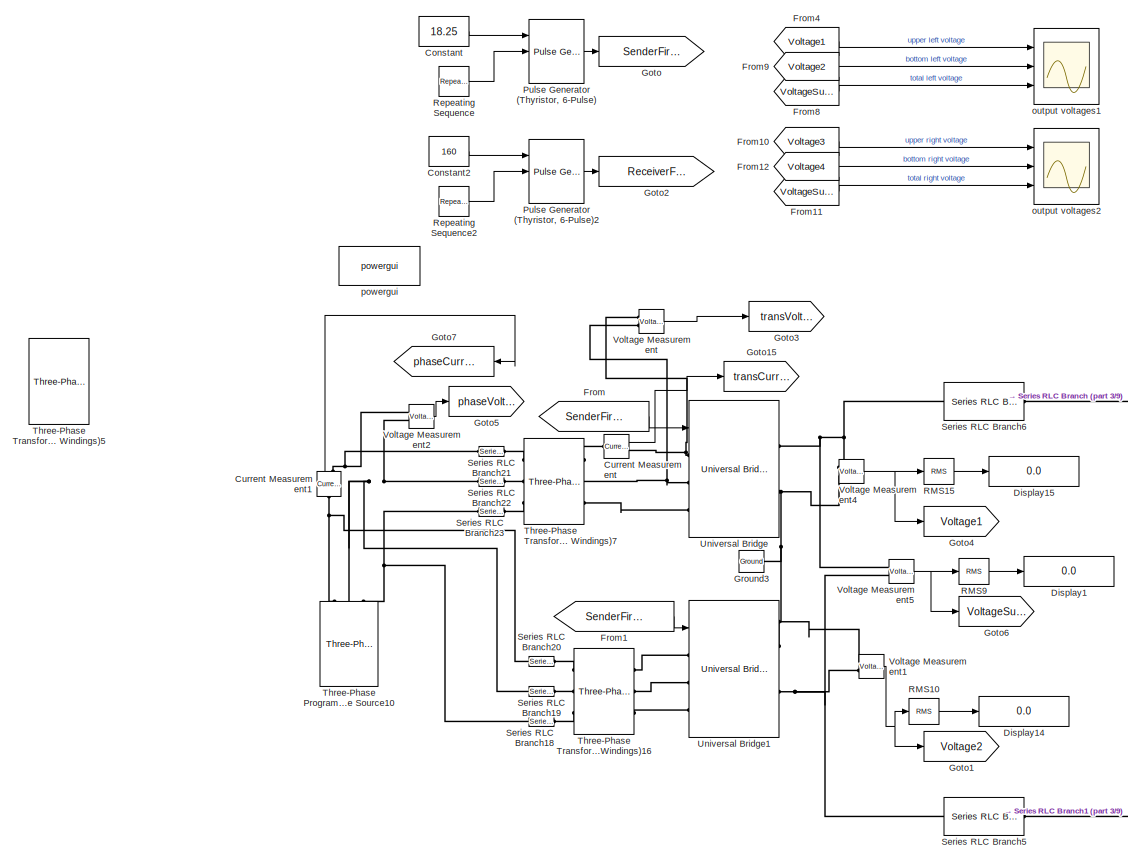
[diagram: root canvas - part 1/9, top left region]
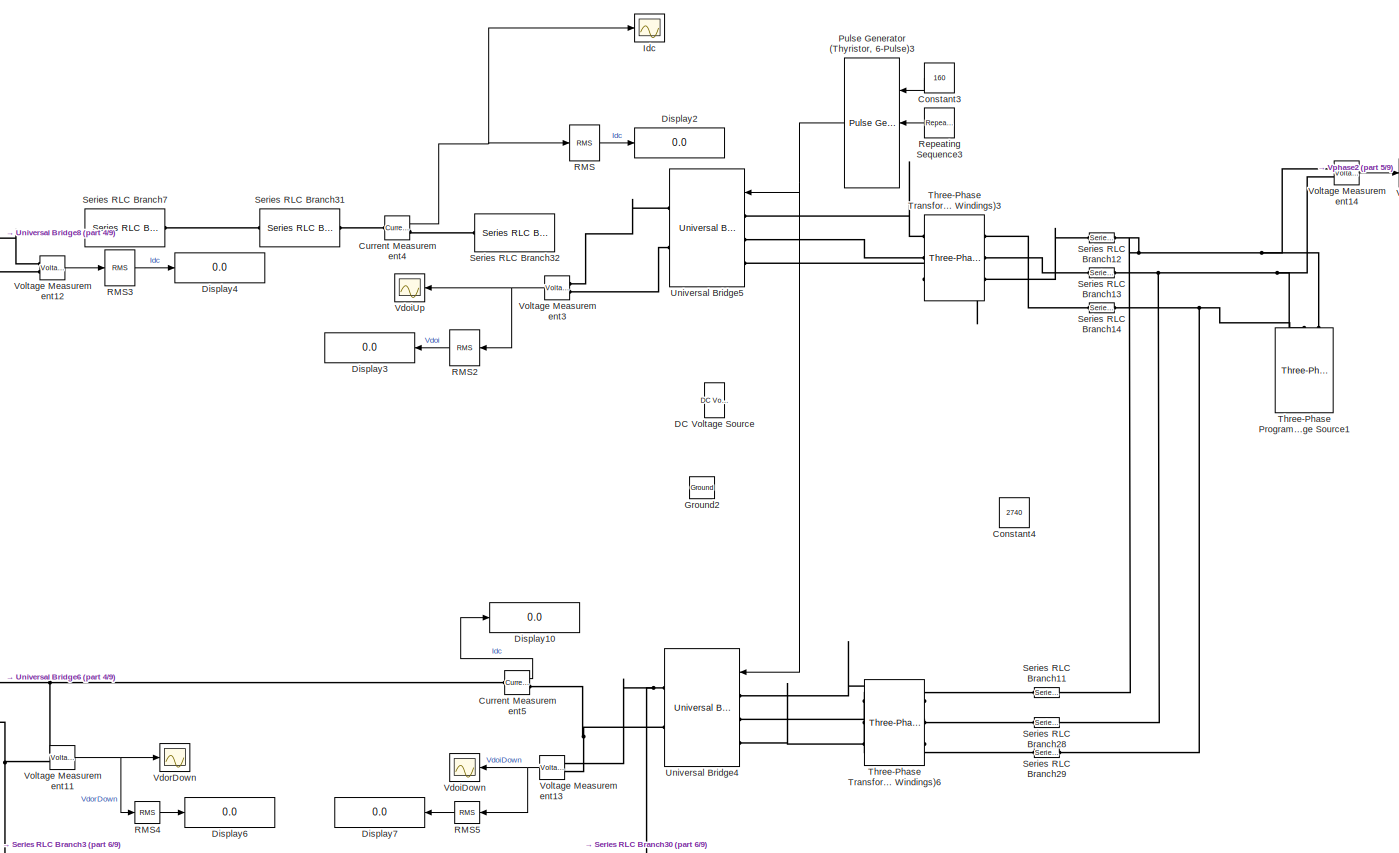
[diagram: root canvas - part 2/9, top right region]
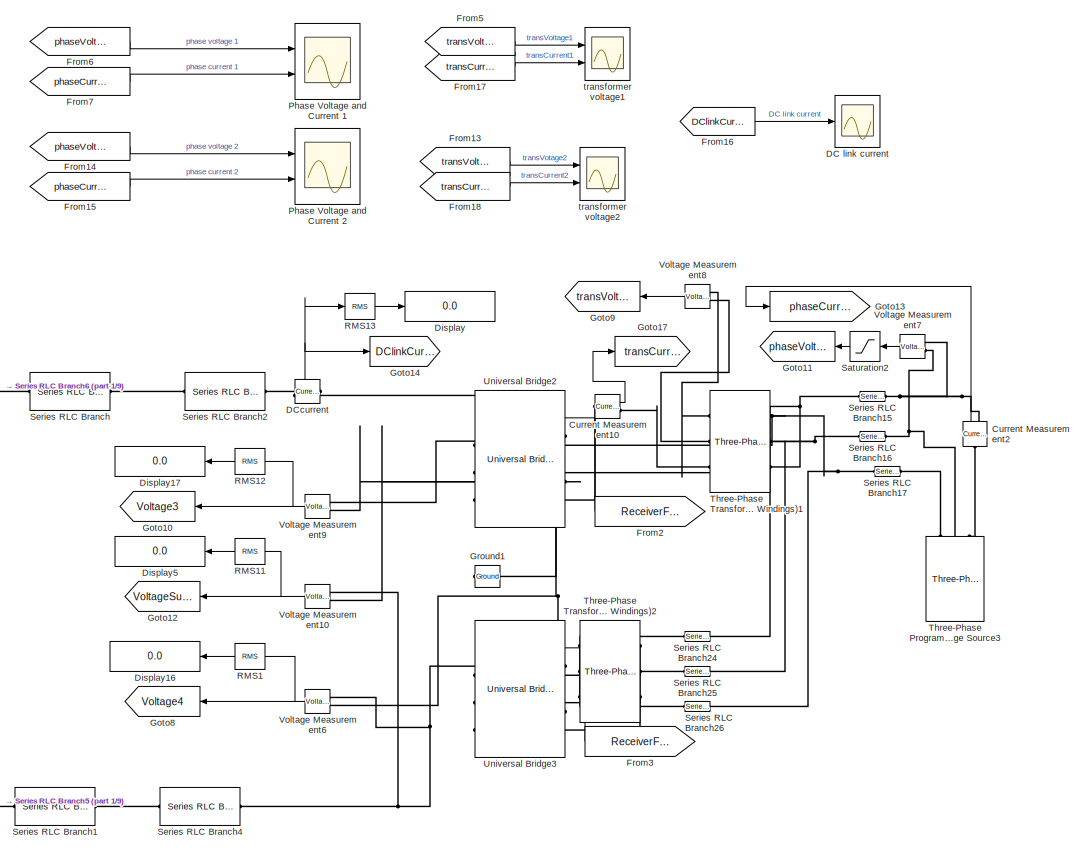
[diagram: root canvas - part 3/9, top left region]
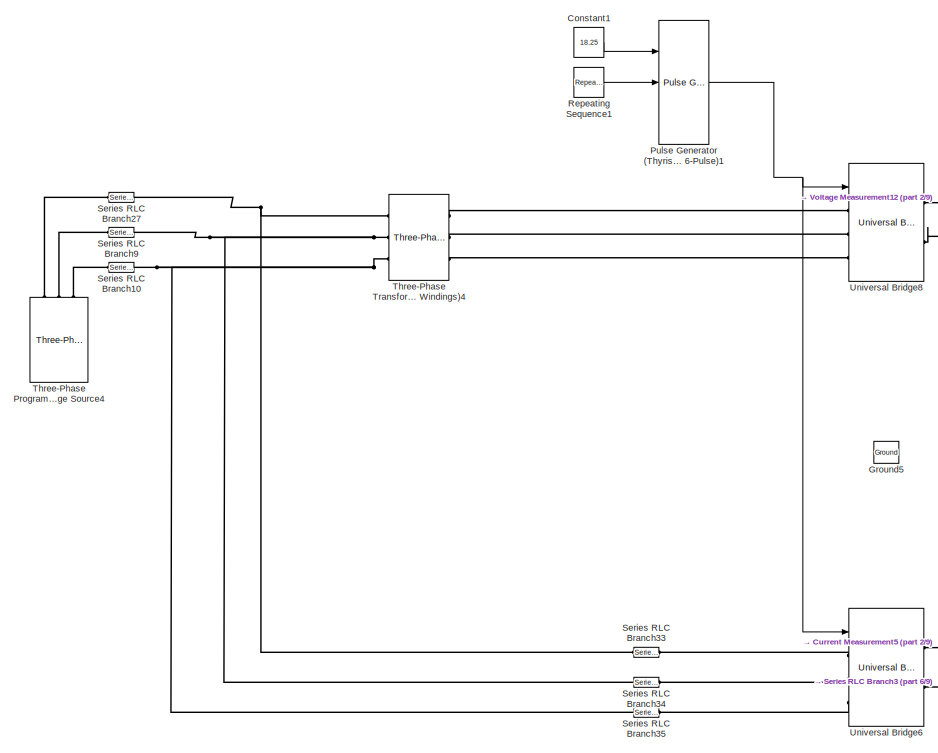
[diagram: root canvas - part 4/9, top center region]
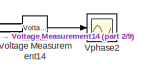
[diagram: root canvas - part 5/9, top right region]
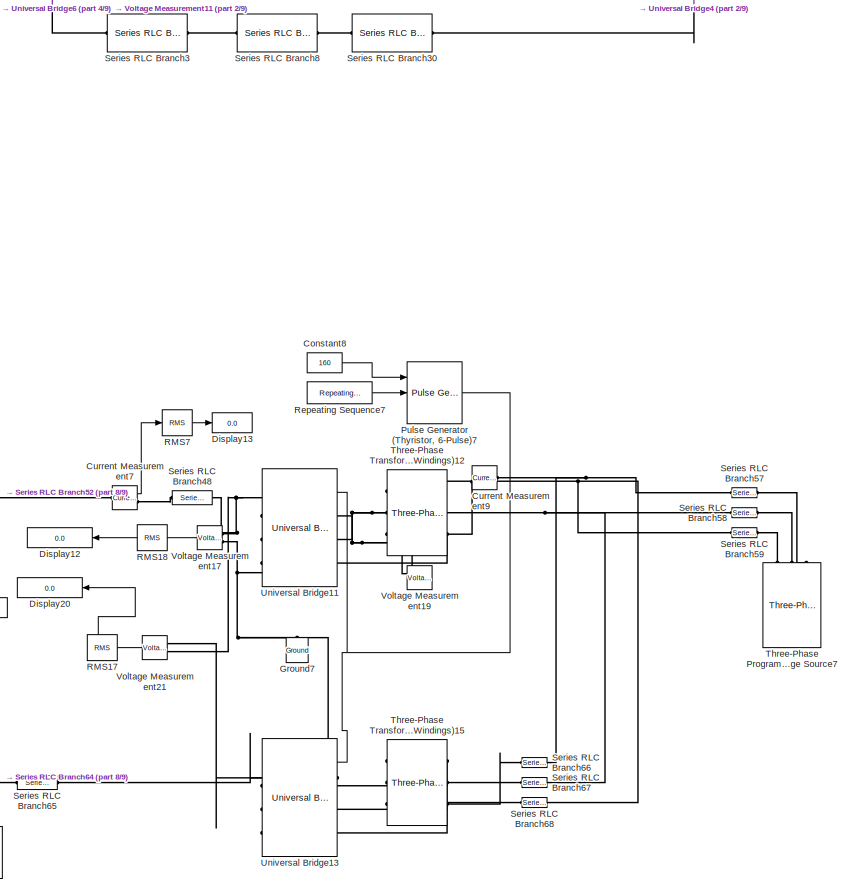
[diagram: root canvas - part 6/9, bottom right region]
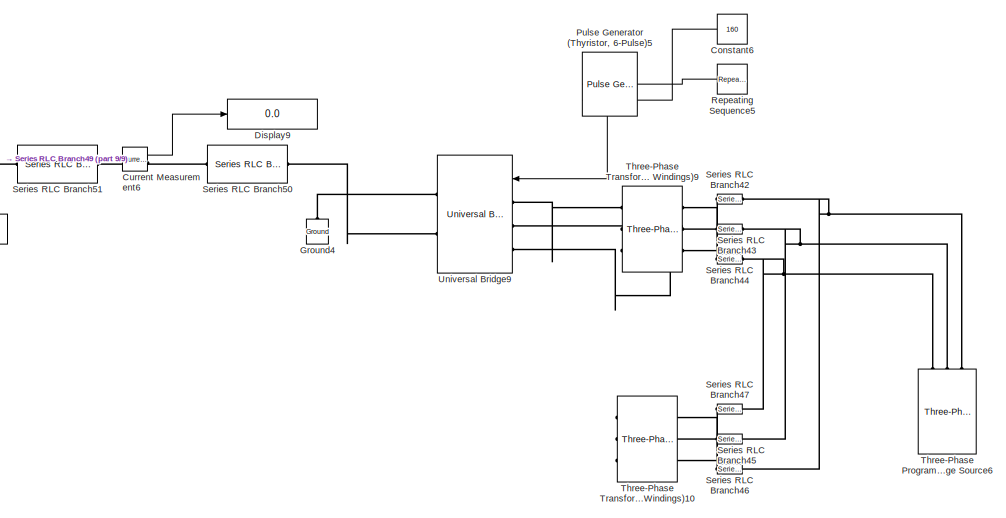
[diagram: root canvas - part 7/9, bottom center region]
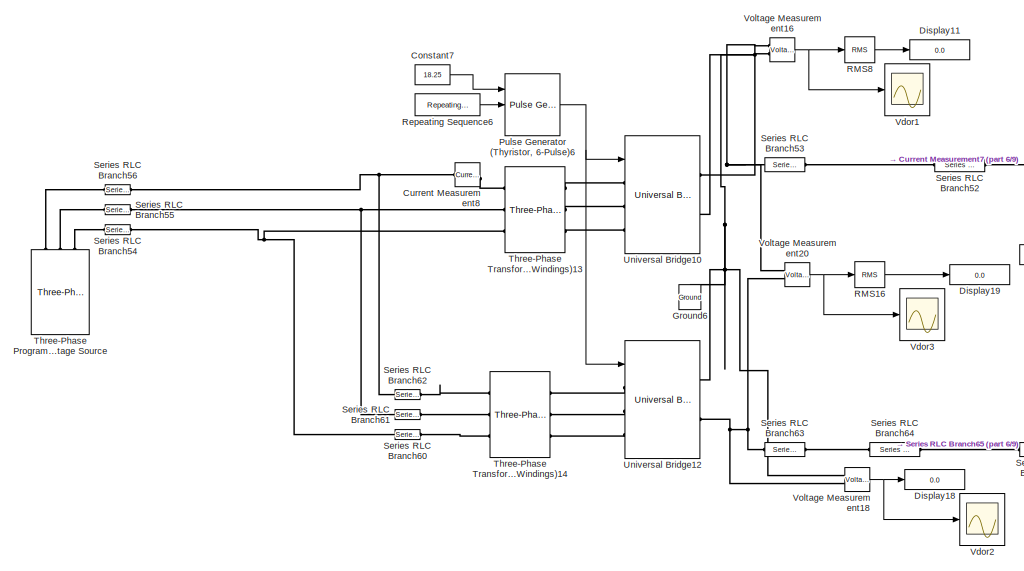
[diagram: root canvas - part 8/9, bottom center region]
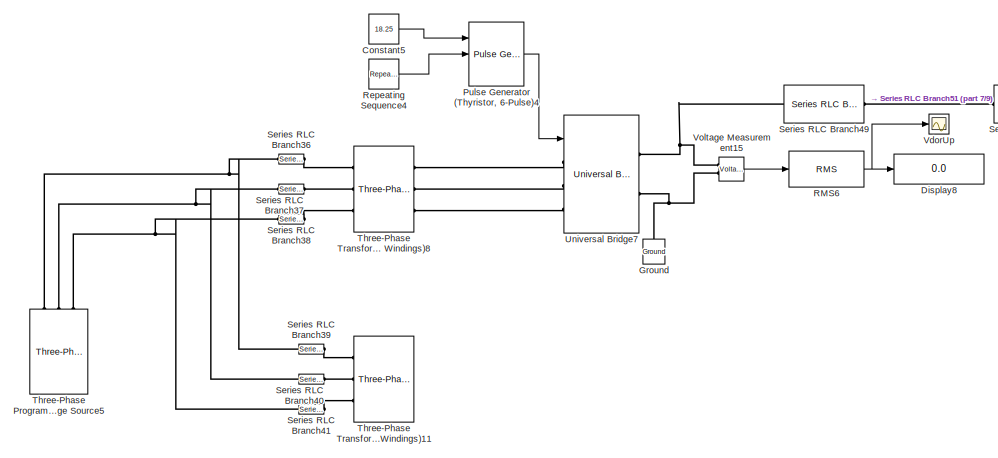
[diagram: root canvas - part 9/9, bottom left region]
MODEL slx_2bbc25c59e41
KIND model
CONFIG AbsTol = auto
CONFIG EnableMultiTasking = off
CONFIG FixedStep = auto
CONFIG MaxStep = 1e-4
CONFIG MinStep = auto
CONFIG RelTol = 1e-3
CONFIG SampleTimeConstraint = Unconstrained
CONFIG SolverName = ode23s
CONFIG StartTime = 0.0
CONFIG StopTime = 0.08
BLOCK [Constant] Constant
  Value = 18.25
BLOCK [Constant] Constant1
  Commented = on
  Value = 18.25
BLOCK [Constant] Constant2
  Value = 160
BLOCK [Constant] Constant3
  Commented = on
  NameLocation = top
  Value = 160
BLOCK [Constant] Constant4
  Commented = on
  Value = 2740
BLOCK [Constant] Constant5
  Commented = on
  Value = 18.25
BLOCK [Constant] Constant6
  Commented = on
  NameLocation = top
  Value = 160
BLOCK [Constant] Constant7
  Value = 18.25
BLOCK [Constant] Constant8
  Value = 160
BLOCK [Reference] Current Measurement  REF=spsCurrentMeasurementLib/Current Measurement
  Ports = [0, 1, 0, 0, 0, 1, 1]
  SourceBlock = spsCurrentMeasurementLib/Current Measurement
  SourceProductBaseCode = PS
  SourceType = Current Measurement
  UserDataPersistent = on
BLOCK [Reference] Current Measurement1  REF=spsCurrentMeasurementLib/Current Measurement
  NameLocation = right
  Ports = [0, 1, 0, 0, 0, 1, 1]
  SourceBlock = spsCurrentMeasurementLib/Current Measurement
  SourceProductBaseCode = PS
  SourceType = Current Measurement
  UserDataPersistent = on
BLOCK [Reference] Current Measurement10  REF=spsCurrentMeasurementLib/Current Measurement
  Ports = [0, 1, 0, 0, 0, 1, 1]
  SourceBlock = spsCurrentMeasurementLib/Current Measurement
  SourceProductBaseCode = PS
  SourceType = Current Measurement
  UserDataPersistent = on
BLOCK [Reference] Current Measurement2  REF=spsCurrentMeasurementLib/Current Measurement
  NameLocation = right
  Ports = [0, 1, 0, 0, 0, 1, 1]
  SourceBlock = spsCurrentMeasurementLib/Current Measurement
  SourceProductBaseCode = PS
  SourceType = Current Measurement
  UserDataPersistent = on
BLOCK [Reference] Current Measurement4  REF=spsCurrentMeasurementLib/Current Measurement
  Commented = on
  Ports = [0, 1, 0, 0, 0, 1, 1]
  SourceBlock = spsCurrentMeasurementLib/Current Measurement
  SourceProductBaseCode = PS
  SourceType = Current Measurement
  UserDataPersistent = on
BLOCK [Reference] Current Measurement5  REF=spsCurrentMeasurementLib/Current Measurement
  Commented = on
  Ports = [0, 1, 0, 0, 0, 1, 1]
  SourceBlock = spsCurrentMeasurementLib/Current Measurement
  SourceProductBaseCode = PS
  SourceType = Current Measurement
  UserDataPersistent = on
BLOCK [Reference] Current Measurement6  REF=spsCurrentMeasurementLib/Current Measurement
  Commented = on
  Ports = [0, 1, 0, 0, 0, 1, 1]
  SourceBlock = spsCurrentMeasurementLib/Current Measurement
  SourceProductBaseCode = PS
  SourceType = Current Measurement
  UserDataPersistent = on
BLOCK [Reference] Current Measurement7  REF=spsCurrentMeasurementLib/Current Measurement
  NameLocation = top
  Ports = [0, 1, 0, 0, 0, 1, 1]
  SourceBlock = spsCurrentMeasurementLib/Current Measurement
  SourceProductBaseCode = PS
  SourceType = Current Measurement
  UserDataPersistent = on
BLOCK [Reference] Current Measurement8  REF=spsCurrentMeasurementLib/Current Measurement
  NameLocation = top
  Ports = [0, 1, 0, 0, 0, 1, 1]
  SourceBlock = spsCurrentMeasurementLib/Current Measurement
  SourceProductBaseCode = PS
  SourceType = Current Measurement
  UserDataPersistent = on
BLOCK [Reference] Current Measurement9  REF=spsCurrentMeasurementLib/Current Measurement
  Ports = [0, 1, 0, 0, 0, 1, 1]
  SourceBlock = spsCurrentMeasurementLib/Current Measurement
  SourceProductBaseCode = PS
  SourceType = Current Measurement
  UserDataPersistent = on
BLOCK [Reference] DC Voltage Source  REF=spsDCVoltageSourceLib/DC Voltage Source
  Commented = on
  Ports = [0, 0, 0, 0, 0, 1, 1]
  SourceBlock = spsDCVoltageSourceLib/DC Voltage Source
  SourceProductBaseCode = PS
  SourceType = DC Voltage Source
BLOCK [Scope] DC link current
  Floating = off
  NumInputPorts = 1
  Ports = [1]
  ScopeSpecificationString = Simulink.scopes.TimeScopeBlockCfg('CurrentConfiguration', extmgr.ConfigurationSet(extmgr.Configuration('Core','General UI',true,'FigureColor',[1 1 1]),extmgr.Configuration('Core','Source UI',true),extmgr.Configuration('Sources','WiredSimulink',true,'DataLoggingVariableName','ScopeData1'),extmgr.Configuration('Visuals','Time Domain',true,'SerializedDisplays',{struct('MinYLimReal','-364.41015','MaxY...<+1870ch>
BLOCK [Reference] DCcurrent  REF=spsCurrentMeasurementLib/Current Measurement
  Ports = [0, 1, 0, 0, 0, 1, 1]
  SourceBlock = spsCurrentMeasurementLib/Current Measurement
  SourceProductBaseCode = PS
  SourceType = Current Measurement
  UserDataPersistent = on
BLOCK [Display] Display
  Decimation = 1
  Ports = [1]
BLOCK [Display] Display1
  Decimation = 1
  Ports = [1]
BLOCK [Display] Display10
  Commented = on
  Decimation = 1
  Ports = [1]
BLOCK [Display] Display11
  Decimation = 1
  Ports = [1]
BLOCK [Display] Display12
  Decimation = 1
  NameLocation = top
  Ports = [1]
BLOCK [Display] Display13
  Decimation = 1
  Ports = [1]
BLOCK [Display] Display14
  Decimation = 1
  Ports = [1]
BLOCK [Display] Display15
  Decimation = 1
  Ports = [1]
BLOCK [Display] Display16
  Decimation = 1
  NameLocation = top
  Ports = [1]
BLOCK [Display] Display17
  Decimation = 1
  NameLocation = top
  Ports = [1]
BLOCK [Display] Display18
  Decimation = 1
  Ports = [1]
BLOCK [Display] Display19
  Decimation = 1
  Ports = [1]
BLOCK [Display] Display2
  Commented = on
  Decimation = 1
  Ports = [1]
BLOCK [Display] Display20
  Decimation = 1
  NameLocation = top
  Ports = [1]
BLOCK [Display] Display3
  Commented = on
  Decimation = 1
  NameLocation = top
  Ports = [1]
BLOCK [Display] Display4
  Commented = on
  Decimation = 1
  Ports = [1]
BLOCK [Display] Display5
  Decimation = 1
  NameLocation = top
  Ports = [1]
BLOCK [Display] Display6
  Commented = on
  Decimation = 1
  Ports = [1]
BLOCK [Display] Display7
  Commented = on
  Decimation = 1
  Ports = [1]
BLOCK [Display] Display8
  Commented = on
  Decimation = 1
  Ports = [1]
BLOCK [Display] Display9
  Commented = on
  Decimation = 1
  Ports = [1]
BLOCK [From] From
  GotoTag = SenderFiringAngles
BLOCK [From] From1
  GotoTag = SenderFiringAngles
BLOCK [From] From10
  GotoTag = Voltage3
BLOCK [From] From11
  GotoTag = VoltageSum2
BLOCK [From] From12
  GotoTag = Voltage4
BLOCK [From] From13
  GotoTag = transVoltage2
BLOCK [From] From14
  GotoTag = phaseVoltage2
BLOCK [From] From15
  GotoTag = phaseCurrent2
BLOCK [From] From16
  GotoTag = DClinkCurrent
BLOCK [From] From17
  GotoTag = transCurrent1
BLOCK [From] From18
  GotoTag = transCurrent2
BLOCK [From] From2
  GotoTag = ReceiverFiringAngles
BLOCK [From] From3
  GotoTag = ReceiverFiringAngles
BLOCK [From] From4
  GotoTag = Voltage1
BLOCK [From] From5
  GotoTag = transVoltage1
BLOCK [From] From6
  GotoTag = phaseVoltage
BLOCK [From] From7
  GotoTag = phaseCurrent
BLOCK [From] From8
  GotoTag = VoltageSum1
BLOCK [From] From9
  GotoTag = Voltage2
BLOCK [Goto] Goto
  GotoTag = SenderFiringAngles
BLOCK [Goto] Goto1
  GotoTag = Voltage2
BLOCK [Goto] Goto10
  GotoTag = Voltage3
BLOCK [Goto] Goto11
  GotoTag = phaseVoltage2
BLOCK [Goto] Goto12
  GotoTag = VoltageSum2
BLOCK [Goto] Goto13
  GotoTag = phaseCurrent2
  NameLocation = top
BLOCK [Goto] Goto14
  GotoTag = DClinkCurrent
BLOCK [Goto] Goto15
  GotoTag = transCurrent1
BLOCK [Goto] Goto17
  GotoTag = transCurrent2
BLOCK [Goto] Goto2
  GotoTag = ReceiverFiringAngles
BLOCK [Goto] Goto3
  GotoTag = transVoltage1
BLOCK [Goto] Goto4
  GotoTag = Voltage1
BLOCK [Goto] Goto5
  GotoTag = phaseVoltage
BLOCK [Goto] Goto6
  GotoTag = VoltageSum1
BLOCK [Goto] Goto7
  GotoTag = phaseCurrent
  NameLocation = top
BLOCK [Goto] Goto8
  GotoTag = Voltage4
BLOCK [Goto] Goto9
  GotoTag = transVoltage2
BLOCK [Reference] Ground  REF=spsGroundLib/Ground
  Commented = on
  NameLocation = right
  Ports = [0, 0, 0, 0, 0, 1]
  SourceBlock = spsGroundLib/Ground
  SourceProductBaseCode = PS
  SourceType = Ground
BLOCK [Reference] Ground1  REF=spsGroundLib/Ground
  NameLocation = top
  Ports = [0, 0, 0, 0, 0, 1]
  SourceBlock = spsGroundLib/Ground
  SourceProductBaseCode = PS
  SourceType = Ground
BLOCK [Reference] Ground2  REF=spsGroundLib/Ground
  Commented = on
  NameLocation = top
  Ports = [0, 0, 0, 0, 0, 1]
  SourceBlock = spsGroundLib/Ground
  SourceProductBaseCode = PS
  SourceType = Ground
BLOCK [Reference] Ground3  REF=spsGroundLib/Ground
  Ports = [0, 0, 0, 0, 0, 1]
  SourceBlock = spsGroundLib/Ground
  SourceProductBaseCode = PS
  SourceType = Ground
BLOCK [Reference] Ground4  REF=spsGroundLib/Ground
  Commented = on
  NameLocation = right
  Ports = [0, 0, 0, 0, 0, 1]
  SourceBlock = spsGroundLib/Ground
  SourceProductBaseCode = PS
  SourceType = Ground
BLOCK [Reference] Ground5  REF=spsGroundLib/Ground
  Commented = on
  Ports = [0, 0, 0, 0, 0, 1]
  SourceBlock = spsGroundLib/Ground
  SourceProductBaseCode = PS
  SourceType = Ground
BLOCK [Reference] Ground6  REF=spsGroundLib/Ground
  NameLocation = right
  Ports = [0, 0, 0, 0, 0, 1]
  SourceBlock = spsGroundLib/Ground
  SourceProductBaseCode = PS
  SourceType = Ground
BLOCK [Reference] Ground7  REF=spsGroundLib/Ground
  NameLocation = right
  Ports = [0, 0, 0, 0, 0, 1]
  SourceBlock = spsGroundLib/Ground
  SourceProductBaseCode = PS
  SourceType = Ground
BLOCK [Scope] Idc
  Commented = on
  Floating = off
  NumInputPorts = 1
  Ports = [1]
  ScopeSpecificationString = Simulink.scopes.TimeScopeBlockCfg('CurrentConfiguration', extmgr.ConfigurationSet(extmgr.Configuration('Core','General UI',true,'FigureColor',[1 1 1]),extmgr.Configuration('Core','Source UI',true),extmgr.Configuration('Sources','WiredSimulink',true,'DataLoggingVariableName','ScopeData3'),extmgr.Configuration('Visuals','Time Domain',true,'SerializedDisplays',{struct('MinYLimReal','-0.58351','MaxYLi...<+1857ch>
BLOCK [Scope] Phase Voltage and Current 1
  Floating = off
  NumInputPorts = 2
  Ports = [2]
  ScopeSpecificationString = Simulink.scopes.TimeScopeBlockCfg('CurrentConfiguration', extmgr.ConfigurationSet(extmgr.Configuration('Core','General UI',true,'FigureColor',[1 1 1]),extmgr.Configuration('Core','Source UI',true),extmgr.Configuration('Sources','WiredSimulink',true,'DataLoggingVariableName','ScopeData1'),extmgr.Configuration('Visuals','Time Domain',true,'SerializedDisplays',{struct('MinYLimReal','-27300.24313','Ma...<+2384ch>
BLOCK [Scope] Phase Voltage and Current 2
  Floating = off
  NumInputPorts = 2
  Ports = [2]
  ScopeSpecificationString = Simulink.scopes.TimeScopeBlockCfg('CurrentConfiguration', extmgr.ConfigurationSet(extmgr.Configuration('Core','General UI',true,'FigureColor',[1 1 1]),extmgr.Configuration('Core','Source UI',true),extmgr.Configuration('Sources','WiredSimulink',true,'DataLoggingVariableName','ScopeData2'),extmgr.Configuration('Visuals','Time Domain',true,'SerializedDisplays',{struct('MinYLimReal','-38890.87297','Ma...<+2384ch>
BLOCK [Reference] Pulse Generator (Thyristor, 6-Pulse)  REF=spsPulseGeneratorThyristor6PulseLib/Pulse Generator
(Thyristor, 6-Pulse)
  Ports = [3, 1]
  SourceBlock = spsPulseGeneratorThyristor6PulseLib/Pulse Generator\n(Thyristor, 6-Pulse)
  SourceProductBaseCode = PS
  SourceType = Pulse Generator (Thyristor)
BLOCK [Reference] Pulse Generator (Thyristor, 6-Pulse)1  REF=spsPulseGeneratorThyristor6PulseLib/Pulse Generator
(Thyristor, 6-Pulse)
  Commented = on
  Ports = [3, 1]
  SourceBlock = spsPulseGeneratorThyristor6PulseLib/Pulse Generator\n(Thyristor, 6-Pulse)
  SourceProductBaseCode = PS
  SourceType = Pulse Generator (Thyristor)
BLOCK [Reference] Pulse Generator (Thyristor, 6-Pulse)2  REF=spsPulseGeneratorThyristor6PulseLib/Pulse Generator
(Thyristor, 6-Pulse)
  Ports = [3, 1]
  SourceBlock = spsPulseGeneratorThyristor6PulseLib/Pulse Generator\n(Thyristor, 6-Pulse)
  SourceProductBaseCode = PS
  SourceType = Pulse Generator (Thyristor)
BLOCK [Reference] Pulse Generator (Thyristor, 6-Pulse)3  REF=spsPulseGeneratorThyristor6PulseLib/Pulse Generator
(Thyristor, 6-Pulse)
  Commented = on
  Ports = [3, 1]
  SourceBlock = spsPulseGeneratorThyristor6PulseLib/Pulse Generator\n(Thyristor, 6-Pulse)
  SourceProductBaseCode = PS
  SourceType = Pulse Generator (Thyristor)
BLOCK [Reference] Pulse Generator (Thyristor, 6-Pulse)4  REF=spsPulseGeneratorThyristor6PulseLib/Pulse Generator
(Thyristor, 6-Pulse)
  Commented = on
  Ports = [3, 1]
  SourceBlock = spsPulseGeneratorThyristor6PulseLib/Pulse Generator\n(Thyristor, 6-Pulse)
  SourceProductBaseCode = PS
  SourceType = Pulse Generator (Thyristor)
BLOCK [Reference] Pulse Generator (Thyristor, 6-Pulse)5  REF=spsPulseGeneratorThyristor6PulseLib/Pulse Generator
(Thyristor, 6-Pulse)
  Commented = on
  NameLocation = top
  Ports = [3, 1]
  SourceBlock = spsPulseGeneratorThyristor6PulseLib/Pulse Generator\n(Thyristor, 6-Pulse)
  SourceProductBaseCode = PS
  SourceType = Pulse Generator (Thyristor)
BLOCK [Reference] Pulse Generator (Thyristor, 6-Pulse)6  REF=spsPulseGeneratorThyristor12PulseLib/Pulse Generator
(Thyristor, 12-Pulse)
  Ports = [3, 1]
  SourceBlock = spsPulseGeneratorThyristor12PulseLib/Pulse Generator\n(Thyristor, 12-Pulse)
  SourceProductBaseCode = PS
  SourceType = Pulse Generator (Thyristor)
BLOCK [Reference] Pulse Generator (Thyristor, 6-Pulse)7  REF=spsPulseGeneratorThyristor12PulseLib/Pulse Generator
(Thyristor, 12-Pulse)
  Ports = [3, 1]
  SourceBlock = spsPulseGeneratorThyristor12PulseLib/Pulse Generator\n(Thyristor, 12-Pulse)
  SourceProductBaseCode = PS
  SourceType = Pulse Generator (Thyristor)
BLOCK [Reference] RMS  REF=dspstat3/RMS
  Commented = on
  Ports = [1, 1]
  SourceBlock = dspstat3/RMS
  SourceProductBaseCode = DS
  SourceType = RMS
  UserDataPersistent = on
BLOCK [Reference] RMS1  REF=spsRMSLib/RMS
  NameLocation = top
  Ports = [1, 1]
  SourceBlock = spsRMSLib/RMS
  SourceProductBaseCode = PS
  SourceType = RMS
BLOCK [Reference] RMS10  REF=spsRMSLib/RMS
  Ports = [1, 1]
  SourceBlock = spsRMSLib/RMS
  SourceProductBaseCode = PS
  SourceType = RMS
BLOCK [Reference] RMS11  REF=spsRMSLib/RMS
  NameLocation = top
  Ports = [1, 1]
  SourceBlock = spsRMSLib/RMS
  SourceProductBaseCode = PS
  SourceType = RMS
BLOCK [Reference] RMS12  REF=spsRMSLib/RMS
  NameLocation = top
  Ports = [1, 1]
  SourceBlock = spsRMSLib/RMS
  SourceProductBaseCode = PS
  SourceType = RMS
BLOCK [Reference] RMS13  REF=spsRMSLib/RMS
  Ports = [1, 1]
  SourceBlock = spsRMSLib/RMS
  SourceProductBaseCode = PS
  SourceType = RMS
BLOCK [Reference] RMS15  REF=spsRMSLib/RMS
  Ports = [1, 1]
  SourceBlock = spsRMSLib/RMS
  SourceProductBaseCode = PS
  SourceType = RMS
BLOCK [Reference] RMS16  REF=spsRMSLib/RMS
  Ports = [1, 1]
  SourceBlock = spsRMSLib/RMS
  SourceProductBaseCode = PS
  SourceType = RMS
BLOCK [Reference] RMS17  REF=spsRMSLib/RMS
  NameLocation = top
  Ports = [1, 1]
  SourceBlock = spsRMSLib/RMS
  SourceProductBaseCode = PS
  SourceType = RMS
BLOCK [Reference] RMS18  REF=spsRMSLib/RMS
  NameLocation = top
  Ports = [1, 1]
  SourceBlock = spsRMSLib/RMS
  SourceProductBaseCode = PS
  SourceType = RMS
BLOCK [Reference] RMS2  REF=dspstat3/RMS
  Commented = on
  NameLocation = top
  Ports = [1, 1]
  SourceBlock = dspstat3/RMS
  SourceProductBaseCode = DS
  SourceType = RMS
  UserDataPersistent = on
BLOCK [Reference] RMS3  REF=dspstat3/RMS
  Commented = on
  Ports = [1, 1]
  SourceBlock = dspstat3/RMS
  SourceProductBaseCode = DS
  SourceType = RMS
  UserDataPersistent = on
BLOCK [Reference] RMS4  REF=dspstat3/RMS
  Commented = on
  Ports = [1, 1]
  SourceBlock = dspstat3/RMS
  SourceProductBaseCode = DS
  SourceType = RMS
  UserDataPersistent = on
BLOCK [Reference] RMS5  REF=dspstat3/RMS
  Commented = on
  Ports = [1, 1]
  SourceBlock = dspstat3/RMS
  SourceProductBaseCode = DS
  SourceType = RMS
  UserDataPersistent = on
BLOCK [Reference] RMS6  REF=dspstat3/RMS
  Commented = on
  Ports = [1, 1]
  SourceBlock = dspstat3/RMS
  SourceProductBaseCode = DS
  SourceType = RMS
  UserDataPersistent = on
BLOCK [Reference] RMS7  REF=spsRMSLib/RMS
  Ports = [1, 1]
  SourceBlock = spsRMSLib/RMS
  SourceProductBaseCode = PS
  SourceType = RMS
BLOCK [Reference] RMS8  REF=spsRMSLib/RMS
  Ports = [1, 1]
  SourceBlock = spsRMSLib/RMS
  SourceProductBaseCode = PS
  SourceType = RMS
BLOCK [Reference] RMS9  REF=spsRMSLib/RMS
  Ports = [1, 1]
  SourceBlock = spsRMSLib/RMS
  SourceProductBaseCode = PS
  SourceType = RMS
BLOCK [Reference] Repeating Sequence  REF=simulink/Sources/Repeating
Sequence
  Ports = [0, 1]
  SourceBlock = simulink/Sources/Repeating\nSequence
  SourceProductBaseCode = SL
  SourceType = Repeating table
BLOCK [Reference] Repeating Sequence1  REF=simulink/Sources/Repeating
Sequence
  Commented = on
  Ports = [0, 1]
  SourceBlock = simulink/Sources/Repeating\nSequence
  SourceProductBaseCode = SL
  SourceType = Repeating table
BLOCK [Reference] Repeating Sequence2  REF=simulink/Sources/Repeating
Sequence
  Ports = [0, 1]
  SourceBlock = simulink/Sources/Repeating\nSequence
  SourceProductBaseCode = SL
  SourceType = Repeating table
BLOCK [Reference] Repeating Sequence3  REF=simulink/Sources/Repeating
Sequence
  Commented = on
  NameLocation = top
  Ports = [0, 1]
  SourceBlock = simulink/Sources/Repeating\nSequence
  SourceProductBaseCode = SL
  SourceType = Repeating table
BLOCK [Reference] Repeating Sequence4  REF=simulink/Sources/Repeating
Sequence
  Commented = on
  Ports = [0, 1]
  SourceBlock = simulink/Sources/Repeating\nSequence
  SourceProductBaseCode = SL
  SourceType = Repeating table
BLOCK [Reference] Repeating Sequence5  REF=simulink/Sources/Repeating
Sequence
  Commented = on
  NameLocation = top
  Ports = [0, 1]
  SourceBlock = simulink/Sources/Repeating\nSequence
  SourceProductBaseCode = SL
  SourceType = Repeating table
BLOCK [Reference] Repeating Sequence6  REF=simulink/Sources/Repeating
Sequence
  Ports = [0, 1]
  SourceBlock = simulink/Sources/Repeating\nSequence
  SourceProductBaseCode = SL
  SourceType = Repeating table
BLOCK [Reference] Repeating Sequence7  REF=simulink/Sources/Repeating
Sequence
  Ports = [0, 1]
  SourceBlock = simulink/Sources/Repeating\nSequence
  SourceProductBaseCode = SL
  SourceType = Repeating table
BLOCK [Saturate] Saturation2
  LowerLimit = -200e3
  UpperLimit = 200e3
BLOCK [Reference] Series RLC Branch  REF=spsSeriesRLCBranchLib/Series RLC Branch
  Ports = [0, 0, 0, 0, 0, 1, 1]
  SourceBlock = spsSeriesRLCBranchLib/Series RLC Branch
  SourceProductBaseCode = PS
  SourceType = Series RLC Branch
BLOCK [Reference] Series RLC Branch1  REF=spsSeriesRLCBranchLib/Series RLC Branch
  Ports = [0, 0, 0, 0, 0, 1, 1]
  SourceBlock = spsSeriesRLCBranchLib/Series RLC Branch
  SourceProductBaseCode = PS
  SourceType = Series RLC Branch
BLOCK [Reference] Series RLC Branch10  REF=spsSeriesRLCBranchLib/Series RLC Branch
  Commented = on
  Ports = [0, 0, 0, 0, 0, 1, 1]
  SourceBlock = spsSeriesRLCBranchLib/Series RLC Branch
  SourceProductBaseCode = PS
  SourceType = Series RLC Branch
BLOCK [Reference] Series RLC Branch11  REF=spsSeriesRLCBranchLib/Series RLC Branch
  Commented = on
  Ports = [0, 0, 0, 0, 0, 1, 1]
  SourceBlock = spsSeriesRLCBranchLib/Series RLC Branch
  SourceProductBaseCode = PS
  SourceType = Series RLC Branch
BLOCK [Reference] Series RLC Branch12  REF=spsSeriesRLCBranchLib/Series RLC Branch
  Commented = on
  Ports = [0, 0, 0, 0, 0, 1, 1]
  SourceBlock = spsSeriesRLCBranchLib/Series RLC Branch
  SourceProductBaseCode = PS
  SourceType = Series RLC Branch
BLOCK [Reference] Series RLC Branch13  REF=spsSeriesRLCBranchLib/Series RLC Branch
  Commented = on
  Ports = [0, 0, 0, 0, 0, 1, 1]
  SourceBlock = spsSeriesRLCBranchLib/Series RLC Branch
  SourceProductBaseCode = PS
  SourceType = Series RLC Branch
BLOCK [Reference] Series RLC Branch14  REF=spsSeriesRLCBranchLib/Series RLC Branch
  Commented = on
  Ports = [0, 0, 0, 0, 0, 1, 1]
  SourceBlock = spsSeriesRLCBranchLib/Series RLC Branch
  SourceProductBaseCode = PS
  SourceType = Series RLC Branch
BLOCK [Reference] Series RLC Branch15  REF=spsSeriesRLCBranchLib/Series RLC Branch
  Ports = [0, 0, 0, 0, 0, 1, 1]
  SourceBlock = spsSeriesRLCBranchLib/Series RLC Branch
  SourceProductBaseCode = PS
  SourceType = Series RLC Branch
BLOCK [Reference] Series RLC Branch16  REF=spsSeriesRLCBranchLib/Series RLC Branch
  Ports = [0, 0, 0, 0, 0, 1, 1]
  SourceBlock = spsSeriesRLCBranchLib/Series RLC Branch
  SourceProductBaseCode = PS
  SourceType = Series RLC Branch
BLOCK [Reference] Series RLC Branch17  REF=spsSeriesRLCBranchLib/Series RLC Branch
  Ports = [0, 0, 0, 0, 0, 1, 1]
  SourceBlock = spsSeriesRLCBranchLib/Series RLC Branch
  SourceProductBaseCode = PS
  SourceType = Series RLC Branch
BLOCK [Reference] Series RLC Branch18  REF=spsSeriesRLCBranchLib/Series RLC Branch
  Ports = [0, 0, 0, 0, 0, 1, 1]
  SourceBlock = spsSeriesRLCBranchLib/Series RLC Branch
  SourceProductBaseCode = PS
  SourceType = Series RLC Branch
BLOCK [Reference] Series RLC Branch19  REF=spsSeriesRLCBranchLib/Series RLC Branch
  Ports = [0, 0, 0, 0, 0, 1, 1]
  SourceBlock = spsSeriesRLCBranchLib/Series RLC Branch
  SourceProductBaseCode = PS
  SourceType = Series RLC Branch
BLOCK [Reference] Series RLC Branch2  REF=spsSeriesRLCBranchLib/Series RLC Branch
  Ports = [0, 0, 0, 0, 0, 1, 1]
  SourceBlock = spsSeriesRLCBranchLib/Series RLC Branch
  SourceProductBaseCode = PS
  SourceType = Series RLC Branch
BLOCK [Reference] Series RLC Branch20  REF=spsSeriesRLCBranchLib/Series RLC Branch
  Ports = [0, 0, 0, 0, 0, 1, 1]
  SourceBlock = spsSeriesRLCBranchLib/Series RLC Branch
  SourceProductBaseCode = PS
  SourceType = Series RLC Branch
BLOCK [Reference] Series RLC Branch21  REF=spsSeriesRLCBranchLib/Series RLC Branch
  Ports = [0, 0, 0, 0, 0, 1, 1]
  SourceBlock = spsSeriesRLCBranchLib/Series RLC Branch
  SourceProductBaseCode = PS
  SourceType = Series RLC Branch
BLOCK [Reference] Series RLC Branch22  REF=spsSeriesRLCBranchLib/Series RLC Branch
  Ports = [0, 0, 0, 0, 0, 1, 1]
  SourceBlock = spsSeriesRLCBranchLib/Series RLC Branch
  SourceProductBaseCode = PS
  SourceType = Series RLC Branch
BLOCK [Reference] Series RLC Branch23  REF=spsSeriesRLCBranchLib/Series RLC Branch
  Ports = [0, 0, 0, 0, 0, 1, 1]
  SourceBlock = spsSeriesRLCBranchLib/Series RLC Branch
  SourceProductBaseCode = PS
  SourceType = Series RLC Branch
BLOCK [Reference] Series RLC Branch24  REF=spsSeriesRLCBranchLib/Series RLC Branch
  Ports = [0, 0, 0, 0, 0, 1, 1]
  SourceBlock = spsSeriesRLCBranchLib/Series RLC Branch
  SourceProductBaseCode = PS
  SourceType = Series RLC Branch
BLOCK [Reference] Series RLC Branch25  REF=spsSeriesRLCBranchLib/Series RLC Branch
  Ports = [0, 0, 0, 0, 0, 1, 1]
  SourceBlock = spsSeriesRLCBranchLib/Series RLC Branch
  SourceProductBaseCode = PS
  SourceType = Series RLC Branch
BLOCK [Reference] Series RLC Branch26  REF=spsSeriesRLCBranchLib/Series RLC Branch
  Ports = [0, 0, 0, 0, 0, 1, 1]
  SourceBlock = spsSeriesRLCBranchLib/Series RLC Branch
  SourceProductBaseCode = PS
  SourceType = Series RLC Branch
BLOCK [Reference] Series RLC Branch27  REF=spsSeriesRLCBranchLib/Series RLC Branch
  Commented = on
  Ports = [0, 0, 0, 0, 0, 1, 1]
  SourceBlock = spsSeriesRLCBranchLib/Series RLC Branch
  SourceProductBaseCode = PS
  SourceType = Series RLC Branch
BLOCK [Reference] Series RLC Branch28  REF=spsSeriesRLCBranchLib/Series RLC Branch
  Commented = on
  Ports = [0, 0, 0, 0, 0, 1, 1]
  SourceBlock = spsSeriesRLCBranchLib/Series RLC Branch
  SourceProductBaseCode = PS
  SourceType = Series RLC Branch
BLOCK [Reference] Series RLC Branch29  REF=spsSeriesRLCBranchLib/Series RLC Branch
  Commented = on
  Ports = [0, 0, 0, 0, 0, 1, 1]
  SourceBlock = spsSeriesRLCBranchLib/Series RLC Branch
  SourceProductBaseCode = PS
  SourceType = Series RLC Branch
BLOCK [Reference] Series RLC Branch3  REF=spsSeriesRLCBranchLib/Series RLC Branch
  Commented = on
  Ports = [0, 0, 0, 0, 0, 1, 1]
  SourceBlock = spsSeriesRLCBranchLib/Series RLC Branch
  SourceProductBaseCode = PS
  SourceType = Series RLC Branch
BLOCK [Reference] Series RLC Branch30  REF=spsSeriesRLCBranchLib/Series RLC Branch
  Commented = on
  Ports = [0, 0, 0, 0, 0, 1, 1]
  SourceBlock = spsSeriesRLCBranchLib/Series RLC Branch
  SourceProductBaseCode = PS
  SourceType = Series RLC Branch
BLOCK [Reference] Series RLC Branch31  REF=spsSeriesRLCBranchLib/Series RLC Branch
  Commented = on
  Ports = [0, 0, 0, 0, 0, 1, 1]
  SourceBlock = spsSeriesRLCBranchLib/Series RLC Branch
  SourceProductBaseCode = PS
  SourceType = Series RLC Branch
BLOCK [Reference] Series RLC Branch32  REF=spsSeriesRLCBranchLib/Series RLC Branch
  Commented = on
  Ports = [0, 0, 0, 0, 0, 1, 1]
  SourceBlock = spsSeriesRLCBranchLib/Series RLC Branch
  SourceProductBaseCode = PS
  SourceType = Series RLC Branch
BLOCK [Reference] Series RLC Branch33  REF=spsSeriesRLCBranchLib/Series RLC Branch
  Commented = on
  Ports = [0, 0, 0, 0, 0, 1, 1]
  SourceBlock = spsSeriesRLCBranchLib/Series RLC Branch
  SourceProductBaseCode = PS
  SourceType = Series RLC Branch
BLOCK [Reference] Series RLC Branch34  REF=spsSeriesRLCBranchLib/Series RLC Branch
  Commented = on
  Ports = [0, 0, 0, 0, 0, 1, 1]
  SourceBlock = spsSeriesRLCBranchLib/Series RLC Branch
  SourceProductBaseCode = PS
  SourceType = Series RLC Branch
BLOCK [Reference] Series RLC Branch35  REF=spsSeriesRLCBranchLib/Series RLC Branch
  Commented = on
  Ports = [0, 0, 0, 0, 0, 1, 1]
  SourceBlock = spsSeriesRLCBranchLib/Series RLC Branch
  SourceProductBaseCode = PS
  SourceType = Series RLC Branch
BLOCK [Reference] Series RLC Branch36  REF=spsSeriesRLCBranchLib/Series RLC Branch
  Commented = on
  Ports = [0, 0, 0, 0, 0, 1, 1]
  SourceBlock = spsSeriesRLCBranchLib/Series RLC Branch
  SourceProductBaseCode = PS
  SourceType = Series RLC Branch
BLOCK [Reference] Series RLC Branch37  REF=spsSeriesRLCBranchLib/Series RLC Branch
  Commented = on
  Ports = [0, 0, 0, 0, 0, 1, 1]
  SourceBlock = spsSeriesRLCBranchLib/Series RLC Branch
  SourceProductBaseCode = PS
  SourceType = Series RLC Branch
BLOCK [Reference] Series RLC Branch38  REF=spsSeriesRLCBranchLib/Series RLC Branch
  Commented = on
  Ports = [0, 0, 0, 0, 0, 1, 1]
  SourceBlock = spsSeriesRLCBranchLib/Series RLC Branch
  SourceProductBaseCode = PS
  SourceType = Series RLC Branch
BLOCK [Reference] Series RLC Branch39  REF=spsSeriesRLCBranchLib/Series RLC Branch
  Commented = on
  Ports = [0, 0, 0, 0, 0, 1, 1]
  SourceBlock = spsSeriesRLCBranchLib/Series RLC Branch
  SourceProductBaseCode = PS
  SourceType = Series RLC Branch
BLOCK [Reference] Series RLC Branch4  REF=spsSeriesRLCBranchLib/Series RLC Branch
  Ports = [0, 0, 0, 0, 0, 1, 1]
  SourceBlock = spsSeriesRLCBranchLib/Series RLC Branch
  SourceProductBaseCode = PS
  SourceType = Series RLC Branch
BLOCK [Reference] Series RLC Branch40  REF=spsSeriesRLCBranchLib/Series RLC Branch
  Commented = on
  Ports = [0, 0, 0, 0, 0, 1, 1]
  SourceBlock = spsSeriesRLCBranchLib/Series RLC Branch
  SourceProductBaseCode = PS
  SourceType = Series RLC Branch
BLOCK [Reference] Series RLC Branch41  REF=spsSeriesRLCBranchLib/Series RLC Branch
  Commented = on
  Ports = [0, 0, 0, 0, 0, 1, 1]
  SourceBlock = spsSeriesRLCBranchLib/Series RLC Branch
  SourceProductBaseCode = PS
  SourceType = Series RLC Branch
BLOCK [Reference] Series RLC Branch42  REF=spsSeriesRLCBranchLib/Series RLC Branch
  Commented = on
  Ports = [0, 0, 0, 0, 0, 1, 1]
  SourceBlock = spsSeriesRLCBranchLib/Series RLC Branch
  SourceProductBaseCode = PS
  SourceType = Series RLC Branch
BLOCK [Reference] Series RLC Branch43  REF=spsSeriesRLCBranchLib/Series RLC Branch
  Commented = on
  Ports = [0, 0, 0, 0, 0, 1, 1]
  SourceBlock = spsSeriesRLCBranchLib/Series RLC Branch
  SourceProductBaseCode = PS
  SourceType = Series RLC Branch
BLOCK [Reference] Series RLC Branch44  REF=spsSeriesRLCBranchLib/Series RLC Branch
  Commented = on
  Ports = [0, 0, 0, 0, 0, 1, 1]
  SourceBlock = spsSeriesRLCBranchLib/Series RLC Branch
  SourceProductBaseCode = PS
  SourceType = Series RLC Branch
BLOCK [Reference] Series RLC Branch45  REF=spsSeriesRLCBranchLib/Series RLC Branch
  Commented = on
  Ports = [0, 0, 0, 0, 0, 1, 1]
  SourceBlock = spsSeriesRLCBranchLib/Series RLC Branch
  SourceProductBaseCode = PS
  SourceType = Series RLC Branch
BLOCK [Reference] Series RLC Branch46  REF=spsSeriesRLCBranchLib/Series RLC Branch
  Commented = on
  Ports = [0, 0, 0, 0, 0, 1, 1]
  SourceBlock = spsSeriesRLCBranchLib/Series RLC Branch
  SourceProductBaseCode = PS
  SourceType = Series RLC Branch
BLOCK [Reference] Series RLC Branch47  REF=spsSeriesRLCBranchLib/Series RLC Branch
  Commented = on
  Ports = [0, 0, 0, 0, 0, 1, 1]
  SourceBlock = spsSeriesRLCBranchLib/Series RLC Branch
  SourceProductBaseCode = PS
  SourceType = Series RLC Branch
BLOCK [Reference] Series RLC Branch48  REF=spsSeriesRLCBranchLib/Series RLC Branch
  Ports = [0, 0, 0, 0, 0, 1, 1]
  SourceBlock = spsSeriesRLCBranchLib/Series RLC Branch
  SourceProductBaseCode = PS
  SourceType = Series RLC Branch
BLOCK [Reference] Series RLC Branch49  REF=spsSeriesRLCBranchLib/Series RLC Branch
  Commented = on
  Ports = [0, 0, 0, 0, 0, 1, 1]
  SourceBlock = spsSeriesRLCBranchLib/Series RLC Branch
  SourceProductBaseCode = PS
  SourceType = Series RLC Branch
BLOCK [Reference] Series RLC Branch5  REF=spsSeriesRLCBranchLib/Series RLC Branch
  Ports = [0, 0, 0, 0, 0, 1, 1]
  SourceBlock = spsSeriesRLCBranchLib/Series RLC Branch
  SourceProductBaseCode = PS
  SourceType = Series RLC Branch
BLOCK [Reference] Series RLC Branch50  REF=spsSeriesRLCBranchLib/Series RLC Branch
  Commented = on
  Ports = [0, 0, 0, 0, 0, 1, 1]
  SourceBlock = spsSeriesRLCBranchLib/Series RLC Branch
  SourceProductBaseCode = PS
  SourceType = Series RLC Branch
BLOCK [Reference] Series RLC Branch51  REF=spsSeriesRLCBranchLib/Series RLC Branch
  Commented = on
  Ports = [0, 0, 0, 0, 0, 1, 1]
  SourceBlock = spsSeriesRLCBranchLib/Series RLC Branch
  SourceProductBaseCode = PS
  SourceType = Series RLC Branch
BLOCK [Reference] Series RLC Branch52  REF=spsSeriesRLCBranchLib/Series RLC Branch
  Ports = [0, 0, 0, 0, 0, 1, 1]
  SourceBlock = spsSeriesRLCBranchLib/Series RLC Branch
  SourceProductBaseCode = PS
  SourceType = Series RLC Branch
BLOCK [Reference] Series RLC Branch53  REF=spsSeriesRLCBranchLib/Series RLC Branch
  Ports = [0, 0, 0, 0, 0, 1, 1]
  SourceBlock = spsSeriesRLCBranchLib/Series RLC Branch
  SourceProductBaseCode = PS
  SourceType = Series RLC Branch
BLOCK [Reference] Series RLC Branch54  REF=spsSeriesRLCBranchLib/Series RLC Branch
  Ports = [0, 0, 0, 0, 0, 1, 1]
  SourceBlock = spsSeriesRLCBranchLib/Series RLC Branch
  SourceProductBaseCode = PS
  SourceType = Series RLC Branch
BLOCK [Reference] Series RLC Branch55  REF=spsSeriesRLCBranchLib/Series RLC Branch
  Ports = [0, 0, 0, 0, 0, 1, 1]
  SourceBlock = spsSeriesRLCBranchLib/Series RLC Branch
  SourceProductBaseCode = PS
  SourceType = Series RLC Branch
BLOCK [Reference] Series RLC Branch56  REF=spsSeriesRLCBranchLib/Series RLC Branch
  Ports = [0, 0, 0, 0, 0, 1, 1]
  SourceBlock = spsSeriesRLCBranchLib/Series RLC Branch
  SourceProductBaseCode = PS
  SourceType = Series RLC Branch
BLOCK [Reference] Series RLC Branch57  REF=spsSeriesRLCBranchLib/Series RLC Branch
  Ports = [0, 0, 0, 0, 0, 1, 1]
  SourceBlock = spsSeriesRLCBranchLib/Series RLC Branch
  SourceProductBaseCode = PS
  SourceType = Series RLC Branch
BLOCK [Reference] Series RLC Branch58  REF=spsSeriesRLCBranchLib/Series RLC Branch
  Ports = [0, 0, 0, 0, 0, 1, 1]
  SourceBlock = spsSeriesRLCBranchLib/Series RLC Branch
  SourceProductBaseCode = PS
  SourceType = Series RLC Branch
BLOCK [Reference] Series RLC Branch59  REF=spsSeriesRLCBranchLib/Series RLC Branch
  Ports = [0, 0, 0, 0, 0, 1, 1]
  SourceBlock = spsSeriesRLCBranchLib/Series RLC Branch
  SourceProductBaseCode = PS
  SourceType = Series RLC Branch
BLOCK [Reference] Series RLC Branch6  REF=spsSeriesRLCBranchLib/Series RLC Branch
  Ports = [0, 0, 0, 0, 0, 1, 1]
  SourceBlock = spsSeriesRLCBranchLib/Series RLC Branch
  SourceProductBaseCode = PS
  SourceType = Series RLC Branch
BLOCK [Reference] Series RLC Branch60  REF=spsSeriesRLCBranchLib/Series RLC Branch
  Ports = [0, 0, 0, 0, 0, 1, 1]
  SourceBlock = spsSeriesRLCBranchLib/Series RLC Branch
  SourceProductBaseCode = PS
  SourceType = Series RLC Branch
BLOCK [Reference] Series RLC Branch61  REF=spsSeriesRLCBranchLib/Series RLC Branch
  Ports = [0, 0, 0, 0, 0, 1, 1]
  SourceBlock = spsSeriesRLCBranchLib/Series RLC Branch
  SourceProductBaseCode = PS
  SourceType = Series RLC Branch
BLOCK [Reference] Series RLC Branch62  REF=spsSeriesRLCBranchLib/Series RLC Branch
  Ports = [0, 0, 0, 0, 0, 1, 1]
  SourceBlock = spsSeriesRLCBranchLib/Series RLC Branch
  SourceProductBaseCode = PS
  SourceType = Series RLC Branch
BLOCK [Reference] Series RLC Branch63  REF=spsSeriesRLCBranchLib/Series RLC Branch
  Ports = [0, 0, 0, 0, 0, 1, 1]
  SourceBlock = spsSeriesRLCBranchLib/Series RLC Branch
  SourceProductBaseCode = PS
  SourceType = Series RLC Branch
BLOCK [Reference] Series RLC Branch64  REF=spsSeriesRLCBranchLib/Series RLC Branch
  Ports = [0, 0, 0, 0, 0, 1, 1]
  SourceBlock = spsSeriesRLCBranchLib/Series RLC Branch
  SourceProductBaseCode = PS
  SourceType = Series RLC Branch
BLOCK [Reference] Series RLC Branch65  REF=spsSeriesRLCBranchLib/Series RLC Branch
  Ports = [0, 0, 0, 0, 0, 1, 1]
  SourceBlock = spsSeriesRLCBranchLib/Series RLC Branch
  SourceProductBaseCode = PS
  SourceType = Series RLC Branch
BLOCK [Reference] Series RLC Branch66  REF=spsSeriesRLCBranchLib/Series RLC Branch
  Ports = [0, 0, 0, 0, 0, 1, 1]
  SourceBlock = spsSeriesRLCBranchLib/Series RLC Branch
  SourceProductBaseCode = PS
  SourceType = Series RLC Branch
BLOCK [Reference] Series RLC Branch67  REF=spsSeriesRLCBranchLib/Series RLC Branch
  Ports = [0, 0, 0, 0, 0, 1, 1]
  SourceBlock = spsSeriesRLCBranchLib/Series RLC Branch
  SourceProductBaseCode = PS
  SourceType = Series RLC Branch
BLOCK [Reference] Series RLC Branch68  REF=spsSeriesRLCBranchLib/Series RLC Branch
  Ports = [0, 0, 0, 0, 0, 1, 1]
  SourceBlock = spsSeriesRLCBranchLib/Series RLC Branch
  SourceProductBaseCode = PS
  SourceType = Series RLC Branch
BLOCK [Reference] Series RLC Branch7  REF=spsSeriesRLCBranchLib/Series RLC Branch
  Commented = on
  Ports = [0, 0, 0, 0, 0, 1, 1]
  SourceBlock = spsSeriesRLCBranchLib/Series RLC Branch
  SourceProductBaseCode = PS
  SourceType = Series RLC Branch
BLOCK [Reference] Series RLC Branch8  REF=spsSeriesRLCBranchLib/Series RLC Branch
  Commented = on
  Ports = [0, 0, 0, 0, 0, 1, 1]
  SourceBlock = spsSeriesRLCBranchLib/Series RLC Branch
  SourceProductBaseCode = PS
  SourceType = Series RLC Branch
BLOCK [Reference] Series RLC Branch9  REF=spsSeriesRLCBranchLib/Series RLC Branch
  Commented = on
  Ports = [0, 0, 0, 0, 0, 1, 1]
  SourceBlock = spsSeriesRLCBranchLib/Series RLC Branch
  SourceProductBaseCode = PS
  SourceType = Series RLC Branch
BLOCK [Reference] Three-Phase Programmable Voltage Source  REF=spsThreePhaseProgrammableVoltageSourceLib/Three-Phase
Programmable
Voltage Source
  NameLocation = right
  Ports = [0, 0, 0, 0, 0, 1, 3]
  SourceBlock = spsThreePhaseProgrammableVoltageSourceLib/Three-Phase\nProgrammable\nVoltage Source
  SourceProductBaseCode = PS
  SourceType = Three-Phase Programmable Voltage Source
BLOCK [Reference] Three-Phase Programmable Voltage Source1  REF=spsThreePhaseProgrammableVoltageSourceLib/Three-Phase
Programmable
Voltage Source
  Commented = on
  NameLocation = right
  Ports = [0, 0, 0, 0, 0, 1, 3]
  SourceBlock = spsThreePhaseProgrammableVoltageSourceLib/Three-Phase\nProgrammable\nVoltage Source
  SourceProductBaseCode = PS
  SourceType = Three-Phase Programmable Voltage Source
BLOCK [Reference] Three-Phase Programmable Voltage Source10  REF=spsThreePhaseProgrammableVoltageSourceLib/Three-Phase
Programmable
Voltage Source
  NameLocation = right
  Ports = [0, 0, 0, 0, 0, 1, 3]
  SourceBlock = spsThreePhaseProgrammableVoltageSourceLib/Three-Phase\nProgrammable\nVoltage Source
  SourceProductBaseCode = PS
  SourceType = Three-Phase Programmable Voltage Source
BLOCK [Reference] Three-Phase Programmable Voltage Source3  REF=spsThreePhaseProgrammableVoltageSourceLib/Three-Phase
Programmable
Voltage Source
  NameLocation = right
  Ports = [0, 0, 0, 0, 0, 1, 3]
  SourceBlock = spsThreePhaseProgrammableVoltageSourceLib/Three-Phase\nProgrammable\nVoltage Source
  SourceProductBaseCode = PS
  SourceType = Three-Phase Programmable Voltage Source
BLOCK [Reference] Three-Phase Programmable Voltage Source4  REF=spsThreePhaseProgrammableVoltageSourceLib/Three-Phase
Programmable
Voltage Source
  Commented = on
  NameLocation = right
  Ports = [0, 0, 0, 0, 0, 1, 3]
  SourceBlock = spsThreePhaseProgrammableVoltageSourceLib/Three-Phase\nProgrammable\nVoltage Source
  SourceProductBaseCode = PS
  SourceType = Three-Phase Programmable Voltage Source
BLOCK [Reference] Three-Phase Programmable Voltage Source5  REF=spsThreePhaseProgrammableVoltageSourceLib/Three-Phase
Programmable
Voltage Source
  Commented = on
  NameLocation = right
  Ports = [0, 0, 0, 0, 0, 1, 3]
  SourceBlock = spsThreePhaseProgrammableVoltageSourceLib/Three-Phase\nProgrammable\nVoltage Source
  SourceProductBaseCode = PS
  SourceType = Three-Phase Programmable Voltage Source
BLOCK [Reference] Three-Phase Programmable Voltage Source6  REF=spsThreePhaseProgrammableVoltageSourceLib/Three-Phase
Programmable
Voltage Source
  Commented = on
  NameLocation = right
  Ports = [0, 0, 0, 0, 0, 1, 3]
  SourceBlock = spsThreePhaseProgrammableVoltageSourceLib/Three-Phase\nProgrammable\nVoltage Source
  SourceProductBaseCode = PS
  SourceType = Three-Phase Programmable Voltage Source
BLOCK [Reference] Three-Phase Programmable Voltage Source7  REF=spsThreePhaseProgrammableVoltageSourceLib/Three-Phase
Programmable
Voltage Source
  NameLocation = right
  Ports = [0, 0, 0, 0, 0, 1, 3]
  SourceBlock = spsThreePhaseProgrammableVoltageSourceLib/Three-Phase\nProgrammable\nVoltage Source
  SourceProductBaseCode = PS
  SourceType = Three-Phase Programmable Voltage Source
BLOCK [Reference] Three-Phase Transformer (Two Windings)1  REF=spsThreePhaseTransformerTwoWindingsLib/Three-Phase
Transformer
(Two Windings)
  NameLocation = top
  Ports = [0, 0, 0, 0, 0, 3, 3]
  SourceBlock = spsThreePhaseTransformerTwoWindingsLib/Three-Phase\nTransformer\n(Two Windings)
  SourceProductBaseCode = PS
  SourceType = Three-Phase Transformer (Two Windings)
BLOCK [Reference] Three-Phase Transformer (Two Windings)10  REF=spsThreePhaseTransformerTwoWindingsLib/Three-Phase
Transformer
(Two Windings)
  Commented = on
  NameLocation = top
  Ports = [0, 0, 0, 0, 0, 3, 3]
  SourceBlock = spsThreePhaseTransformerTwoWindingsLib/Three-Phase\nTransformer\n(Two Windings)
  SourceProductBaseCode = PS
  SourceType = Three-Phase Transformer (Two Windings)
BLOCK [Reference] Three-Phase Transformer (Two Windings)11  REF=spsThreePhaseTransformerTwoWindingsLib/Three-Phase
Transformer
(Two Windings)
  Commented = on
  Ports = [0, 0, 0, 0, 0, 3, 3]
  SourceBlock = spsThreePhaseTransformerTwoWindingsLib/Three-Phase\nTransformer\n(Two Windings)
  SourceProductBaseCode = PS
  SourceType = Three-Phase Transformer (Two Windings)
BLOCK [Reference] Three-Phase Transformer (Two Windings)12  REF=spsThreePhaseTransformerTwoWindingsLib/Three-Phase
Transformer
(Two Windings)
  NameLocation = top
  Ports = [0, 0, 0, 0, 0, 3, 3]
  SourceBlock = spsThreePhaseTransformerTwoWindingsLib/Three-Phase\nTransformer\n(Two Windings)
  SourceProductBaseCode = PS
  SourceType = Three-Phase Transformer (Two Windings)
BLOCK [Reference] Three-Phase Transformer (Two Windings)13  REF=spsThreePhaseTransformerTwoWindingsLib/Three-Phase
Transformer
(Two Windings)
  Ports = [0, 0, 0, 0, 0, 3, 3]
  SourceBlock = spsThreePhaseTransformerTwoWindingsLib/Three-Phase\nTransformer\n(Two Windings)
  SourceProductBaseCode = PS
  SourceType = Three-Phase Transformer (Two Windings)
BLOCK [Reference] Three-Phase Transformer (Two Windings)14  REF=spsThreePhaseTransformerTwoWindingsLib/Three-Phase
Transformer
(Two Windings)
  Ports = [0, 0, 0, 0, 0, 3, 3]
  SourceBlock = spsThreePhaseTransformerTwoWindingsLib/Three-Phase\nTransformer\n(Two Windings)
  SourceProductBaseCode = PS
  SourceType = Three-Phase Transformer (Two Windings)
BLOCK [Reference] Three-Phase Transformer (Two Windings)15  REF=spsThreePhaseTransformerTwoWindingsLib/Three-Phase
Transformer
(Two Windings)
  NameLocation = top
  Ports = [0, 0, 0, 0, 0, 3, 3]
  SourceBlock = spsThreePhaseTransformerTwoWindingsLib/Three-Phase\nTransformer\n(Two Windings)
  SourceProductBaseCode = PS
  SourceType = Three-Phase Transformer (Two Windings)
BLOCK [Reference] Three-Phase Transformer (Two Windings)16  REF=spsThreePhaseTransformerTwoWindingsLib/Three-Phase
Transformer
(Two Windings)
  Ports = [0, 0, 0, 0, 0, 3, 3]
  SourceBlock = spsThreePhaseTransformerTwoWindingsLib/Three-Phase\nTransformer\n(Two Windings)
  SourceProductBaseCode = PS
  SourceType = Three-Phase Transformer (Two Windings)
BLOCK [Reference] Three-Phase Transformer (Two Windings)2  REF=spsThreePhaseTransformerTwoWindingsLib/Three-Phase
Transformer
(Two Windings)
  NameLocation = top
  Ports = [0, 0, 0, 0, 0, 3, 3]
  SourceBlock = spsThreePhaseTransformerTwoWindingsLib/Three-Phase\nTransformer\n(Two Windings)
  SourceProductBaseCode = PS
  SourceType = Three-Phase Transformer (Two Windings)
BLOCK [Reference] Three-Phase Transformer (Two Windings)3  REF=spsThreePhaseTransformerTwoWindingsLib/Three-Phase
Transformer
(Two Windings)
  Commented = on
  NameLocation = top
  Ports = [0, 0, 0, 0, 0, 3, 3]
  SourceBlock = spsThreePhaseTransformerTwoWindingsLib/Three-Phase\nTransformer\n(Two Windings)
  SourceProductBaseCode = PS
  SourceType = Three-Phase Transformer (Two Windings)
BLOCK [Reference] Three-Phase Transformer (Two Windings)4  REF=spsThreePhaseTransformerTwoWindingsLib/Three-Phase
Transformer
(Two Windings)
  Commented = on
  Ports = [0, 0, 0, 0, 0, 3, 3]
  SourceBlock = spsThreePhaseTransformerTwoWindingsLib/Three-Phase\nTransformer\n(Two Windings)
  SourceProductBaseCode = PS
  SourceType = Three-Phase Transformer (Two Windings)
BLOCK [Reference] Three-Phase Transformer (Two Windings)5  REF=spsThreePhaseTransformerTwoWindingsLib/Three-Phase
Transformer
(Two Windings)
  Ports = [0, 0, 0, 0, 0, 3, 3]
  SourceBlock = spsThreePhaseTransformerTwoWindingsLib/Three-Phase\nTransformer\n(Two Windings)
  SourceProductBaseCode = PS
  SourceType = Three-Phase Transformer (Two Windings)
BLOCK [Reference] Three-Phase Transformer (Two Windings)6  REF=spsThreePhaseTransformerTwoWindingsLib/Three-Phase
Transformer
(Two Windings)
  Commented = on
  NameLocation = top
  Ports = [0, 0, 0, 0, 0, 3, 3]
  SourceBlock = spsThreePhaseTransformerTwoWindingsLib/Three-Phase\nTransformer\n(Two Windings)
  SourceProductBaseCode = PS
  SourceType = Three-Phase Transformer (Two Windings)
BLOCK [Reference] Three-Phase Transformer (Two Windings)7  REF=spsThreePhaseTransformerTwoWindingsLib/Three-Phase
Transformer
(Two Windings)
  Ports = [0, 0, 0, 0, 0, 3, 3]
  SourceBlock = spsThreePhaseTransformerTwoWindingsLib/Three-Phase\nTransformer\n(Two Windings)
  SourceProductBaseCode = PS
  SourceType = Three-Phase Transformer (Two Windings)
BLOCK [Reference] Three-Phase Transformer (Two Windings)8  REF=spsThreePhaseTransformerTwoWindingsLib/Three-Phase
Transformer
(Two Windings)
  Commented = on
  Ports = [0, 0, 0, 0, 0, 3, 3]
  SourceBlock = spsThreePhaseTransformerTwoWindingsLib/Three-Phase\nTransformer\n(Two Windings)
  SourceProductBaseCode = PS
  SourceType = Three-Phase Transformer (Two Windings)
BLOCK [Reference] Three-Phase Transformer (Two Windings)9  REF=spsThreePhaseTransformerTwoWindingsLib/Three-Phase
Transformer
(Two Windings)
  Commented = on
  NameLocation = top
  Ports = [0, 0, 0, 0, 0, 3, 3]
  SourceBlock = spsThreePhaseTransformerTwoWindingsLib/Three-Phase\nTransformer\n(Two Windings)
  SourceProductBaseCode = PS
  SourceType = Three-Phase Transformer (Two Windings)
BLOCK [Reference] Universal Bridge  REF=spsUniversalBridgeLib/Universal Bridge
  Ports = [1, 0, 0, 0, 0, 3, 2]
  SourceBlock = spsUniversalBridgeLib/Universal Bridge
  SourceProductBaseCode = PS
  SourceType = Universal Bridge
BLOCK [Reference] Universal Bridge1  REF=spsUniversalBridgeLib/Universal Bridge
  Ports = [1, 0, 0, 0, 0, 3, 2]
  SourceBlock = spsUniversalBridgeLib/Universal Bridge
  SourceProductBaseCode = PS
  SourceType = Universal Bridge
BLOCK [Reference] Universal Bridge10  REF=spsUniversalBridgeLib/Universal Bridge
  Ports = [1, 0, 0, 0, 0, 3, 2]
  SourceBlock = spsUniversalBridgeLib/Universal Bridge
  SourceProductBaseCode = PS
  SourceType = Universal Bridge
BLOCK [Reference] Universal Bridge11  REF=spsUniversalBridgeLib/Universal Bridge
  Ports = [1, 0, 0, 0, 0, 3, 2]
  SourceBlock = spsUniversalBridgeLib/Universal Bridge
  SourceProductBaseCode = PS
  SourceType = Universal Bridge
BLOCK [Reference] Universal Bridge12  REF=spsUniversalBridgeLib/Universal Bridge
  Ports = [1, 0, 0, 0, 0, 3, 2]
  SourceBlock = spsUniversalBridgeLib/Universal Bridge
  SourceProductBaseCode = PS
  SourceType = Universal Bridge
BLOCK [Reference] Universal Bridge13  REF=spsUniversalBridgeLib/Universal Bridge
  Ports = [1, 0, 0, 0, 0, 3, 2]
  SourceBlock = spsUniversalBridgeLib/Universal Bridge
  SourceProductBaseCode = PS
  SourceType = Universal Bridge
BLOCK [Reference] Universal Bridge2  REF=spsUniversalBridgeLib/Universal Bridge
  Ports = [1, 0, 0, 0, 0, 3, 2]
  SourceBlock = spsUniversalBridgeLib/Universal Bridge
  SourceProductBaseCode = PS
  SourceType = Universal Bridge
BLOCK [Reference] Universal Bridge3  REF=spsUniversalBridgeLib/Universal Bridge
  Ports = [1, 0, 0, 0, 0, 3, 2]
  SourceBlock = spsUniversalBridgeLib/Universal Bridge
  SourceProductBaseCode = PS
  SourceType = Universal Bridge
BLOCK [Reference] Universal Bridge4  REF=spsUniversalBridgeLib/Universal Bridge
  Commented = on
  Ports = [1, 0, 0, 0, 0, 3, 2]
  SourceBlock = spsUniversalBridgeLib/Universal Bridge
  SourceProductBaseCode = PS
  SourceType = Universal Bridge
BLOCK [Reference] Universal Bridge5  REF=spsUniversalBridgeLib/Universal Bridge
  Commented = on
  Ports = [1, 0, 0, 0, 0, 3, 2]
  SourceBlock = spsUniversalBridgeLib/Universal Bridge
  SourceProductBaseCode = PS
  SourceType = Universal Bridge
BLOCK [Reference] Universal Bridge6  REF=spsUniversalBridgeLib/Universal Bridge
  Commented = on
  Ports = [1, 0, 0, 0, 0, 3, 2]
  SourceBlock = spsUniversalBridgeLib/Universal Bridge
  SourceProductBaseCode = PS
  SourceType = Universal Bridge
BLOCK [Reference] Universal Bridge7  REF=spsUniversalBridgeLib/Universal Bridge
  Commented = on
  Ports = [1, 0, 0, 0, 0, 3, 2]
  SourceBlock = spsUniversalBridgeLib/Universal Bridge
  SourceProductBaseCode = PS
  SourceType = Universal Bridge
BLOCK [Reference] Universal Bridge8  REF=spsUniversalBridgeLib/Universal Bridge
  Commented = on
  Ports = [1, 0, 0, 0, 0, 3, 2]
  SourceBlock = spsUniversalBridgeLib/Universal Bridge
  SourceProductBaseCode = PS
  SourceType = Universal Bridge
BLOCK [Reference] Universal Bridge9  REF=spsUniversalBridgeLib/Universal Bridge
  Commented = on
  Ports = [1, 0, 0, 0, 0, 3, 2]
  SourceBlock = spsUniversalBridgeLib/Universal Bridge
  SourceProductBaseCode = PS
  SourceType = Universal Bridge
BLOCK [Scope] VdoiDown
  Commented = on
  Floating = off
  NameLocation = top
  NumInputPorts = 1
  Ports = [1]
  ScopeSpecificationString = Simulink.scopes.TimeScopeBlockCfg('CurrentConfiguration', extmgr.ConfigurationSet(extmgr.Configuration('Core','General UI',true,'FigureColor',[1 1 1]),extmgr.Configuration('Core','Source UI',true),extmgr.Configuration('Sources','WiredSimulink',true,'DataLoggingVariableName','ScopeData2'),extmgr.Configuration('Visuals','Time Domain',true,'SerializedDisplays',{struct('MinYLimReal','-38961.78412','Ma...<+1875ch>
BLOCK [Scope] VdoiUp
  Commented = on
  Floating = off
  NameLocation = top
  NumInputPorts = 1
  Ports = [1]
  ScopeSpecificationString = Simulink.scopes.TimeScopeBlockCfg('CurrentConfiguration', extmgr.ConfigurationSet(extmgr.Configuration('Core','General UI',true,'FigureColor',[1 1 1]),extmgr.Configuration('Core','Source UI',true),extmgr.Configuration('Sources','WiredSimulink',true,'DataLoggingVariableName','ScopeData5'),extmgr.Configuration('Visuals','Time Domain',true,'SerializedDisplays',{struct('MinYLimReal','-38984.33607','Ma...<+1891ch>
BLOCK [Scope] Vdor1
  Floating = off
  NumInputPorts = 1
  Ports = [1]
  ScopeSpecificationString = Simulink.scopes.TimeScopeBlockCfg('CurrentConfiguration', extmgr.ConfigurationSet(extmgr.Configuration('Core','General UI',true,'FigureColor',[1 1 1]),extmgr.Configuration('Core','Source UI',true),extmgr.Configuration('Sources','WiredSimulink',true,'DataLoggingVariableName','ScopeData1'),extmgr.Configuration('Visuals','Time Domain',true,'SerializedDisplays',{struct('MinYLimReal','-39056.39844','Ma...<+1892ch>
BLOCK [Scope] Vdor2
  Floating = off
  NumInputPorts = 1
  Ports = [1]
  ScopeSpecificationString = Simulink.scopes.TimeScopeBlockCfg('CurrentConfiguration', extmgr.ConfigurationSet(extmgr.Configuration('Core','General UI',true,'FigureColor',[1 1 1]),extmgr.Configuration('Core','Source UI',true),extmgr.Configuration('Sources','WiredSimulink',true,'DataLoggingVariableName','ScopeData2'),extmgr.Configuration('Visuals','Time Domain',true,'SerializedDisplays',{struct('MinYLimReal','-1.01024','MaxYLi...<+1852ch>
BLOCK [Scope] Vdor3
  Floating = off
  NumInputPorts = 1
  Ports = [1]
  ScopeSpecificationString = Simulink.scopes.TimeScopeBlockCfg('CurrentConfiguration', extmgr.ConfigurationSet(extmgr.Configuration('Core','General UI',true,'FigureColor',[1 1 1]),extmgr.Configuration('Core','Source UI',true),extmgr.Configuration('Sources','WiredSimulink',true,'DataLoggingVariableName','ScopeData3'),extmgr.Configuration('Visuals','Time Domain',true,'SerializedDisplays',{struct('MinYLimReal','-1.01024','MaxYLi...<+1852ch>
BLOCK [Scope] VdorDown
  Commented = on
  Floating = off
  NumInputPorts = 1
  Ports = [1]
  ScopeSpecificationString = Simulink.scopes.TimeScopeBlockCfg('CurrentConfiguration', extmgr.ConfigurationSet(extmgr.Configuration('Core','General UI',true,'FigureColor',[1 1 1]),extmgr.Configuration('Core','Source UI',true),extmgr.Configuration('Sources','WiredSimulink',true,'DataLoggingVariableName','ScopeData1'),extmgr.Configuration('Visuals','Time Domain',true,'SerializedDisplays',{struct('MinYLimReal','-38916.74562','Ma...<+1875ch>
BLOCK [Scope] VdorUp
  Commented = on
  Floating = off
  NumInputPorts = 1
  Ports = [1]
  ScopeSpecificationString = Simulink.scopes.TimeScopeBlockCfg('CurrentConfiguration', extmgr.ConfigurationSet(extmgr.Configuration('Core','General UI',true,'FigureColor',[1 1 1]),extmgr.Configuration('Core','Source UI',true),extmgr.Configuration('Sources','WiredSimulink',true,'DataLoggingVariableName','ScopeData1'),extmgr.Configuration('Visuals','Time Domain',true,'SerializedDisplays',{struct('MinYLimReal','-0.000000000001',...<+1842ch>
BLOCK [Reference] Voltage Measurement  REF=spsVoltageMeasurementLib/Voltage Measurement
  Ports = [0, 1, 0, 0, 0, 2]
  SourceBlock = spsVoltageMeasurementLib/Voltage Measurement
  SourceProductBaseCode = PS
  SourceType = Voltage Measurement
  UserDataPersistent = on
BLOCK [Reference] Voltage Measurement1  REF=spsVoltageMeasurementLib/Voltage Measurement
  Ports = [0, 1, 0, 0, 0, 2]
  SourceBlock = spsVoltageMeasurementLib/Voltage Measurement
  SourceProductBaseCode = PS
  SourceType = Voltage Measurement
  UserDataPersistent = on
BLOCK [Reference] Voltage Measurement10  REF=spsVoltageMeasurementLib/Voltage Measurement
  Ports = [0, 1, 0, 0, 0, 2]
  SourceBlock = spsVoltageMeasurementLib/Voltage Measurement
  SourceProductBaseCode = PS
  SourceType = Voltage Measurement
  UserDataPersistent = on
BLOCK [Reference] Voltage Measurement11  REF=spsVoltageMeasurementLib/Voltage Measurement
  Commented = on
  Ports = [0, 1, 0, 0, 0, 2]
  SourceBlock = spsVoltageMeasurementLib/Voltage Measurement
  SourceProductBaseCode = PS
  SourceType = Voltage Measurement
  UserDataPersistent = on
BLOCK [Reference] Voltage Measurement12  REF=spsVoltageMeasurementLib/Voltage Measurement
  Commented = on
  Ports = [0, 1, 0, 0, 0, 2]
  SourceBlock = spsVoltageMeasurementLib/Voltage Measurement
  SourceProductBaseCode = PS
  SourceType = Voltage Measurement
  UserDataPersistent = on
BLOCK [Reference] Voltage Measurement13  REF=spsVoltageMeasurementLib/Voltage Measurement
  Commented = on
  NameLocation = top
  Ports = [0, 1, 0, 0, 0, 2]
  SourceBlock = spsVoltageMeasurementLib/Voltage Measurement
  SourceProductBaseCode = PS
  SourceType = Voltage Measurement
  UserDataPersistent = on
BLOCK [Reference] Voltage Measurement14  REF=spsVoltageMeasurementLib/Voltage Measurement
  Commented = on
  Ports = [0, 1, 0, 0, 0, 2]
  SourceBlock = spsVoltageMeasurementLib/Voltage Measurement
  SourceProductBaseCode = PS
  SourceType = Voltage Measurement
  UserDataPersistent = on
BLOCK [Reference] Voltage Measurement15  REF=spsVoltageMeasurementLib/Voltage Measurement
  Commented = on
  Ports = [0, 1, 0, 0, 0, 2]
  SourceBlock = spsVoltageMeasurementLib/Voltage Measurement
  SourceProductBaseCode = PS
  SourceType = Voltage Measurement
  UserDataPersistent = on
BLOCK [Reference] Voltage Measurement16  REF=spsVoltageMeasurementLib/Voltage Measurement
  Ports = [0, 1, 0, 0, 0, 2]
  SourceBlock = spsVoltageMeasurementLib/Voltage Measurement
  SourceProductBaseCode = PS
  SourceType = Voltage Measurement
  UserDataPersistent = on
BLOCK [Reference] Voltage Measurement17  REF=spsVoltageMeasurementLib/Voltage Measurement
  Ports = [0, 1, 0, 0, 0, 2]
  SourceBlock = spsVoltageMeasurementLib/Voltage Measurement
  SourceProductBaseCode = PS
  SourceType = Voltage Measurement
  UserDataPersistent = on
BLOCK [Reference] Voltage Measurement18  REF=spsVoltageMeasurementLib/Voltage Measurement
  Ports = [0, 1, 0, 0, 0, 2]
  SourceBlock = spsVoltageMeasurementLib/Voltage Measurement
  SourceProductBaseCode = PS
  SourceType = Voltage Measurement
  UserDataPersistent = on
BLOCK [Reference] Voltage Measurement19  REF=spsVoltageMeasurementLib/Voltage Measurement
  Ports = [0, 1, 0, 0, 0, 2]
  SourceBlock = spsVoltageMeasurementLib/Voltage Measurement
  SourceProductBaseCode = PS
  SourceType = Voltage Measurement
  UserDataPersistent = on
BLOCK [Reference] Voltage Measurement2  REF=spsVoltageMeasurementLib/Voltage Measurement
  Ports = [0, 1, 0, 0, 0, 2]
  SourceBlock = spsVoltageMeasurementLib/Voltage Measurement
  SourceProductBaseCode = PS
  SourceType = Voltage Measurement
  UserDataPersistent = on
BLOCK [Reference] Voltage Measurement20  REF=spsVoltageMeasurementLib/Voltage Measurement
  Ports = [0, 1, 0, 0, 0, 2]
  SourceBlock = spsVoltageMeasurementLib/Voltage Measurement
  SourceProductBaseCode = PS
  SourceType = Voltage Measurement
  UserDataPersistent = on
BLOCK [Reference] Voltage Measurement21  REF=spsVoltageMeasurementLib/Voltage Measurement
  Ports = [0, 1, 0, 0, 0, 2]
  SourceBlock = spsVoltageMeasurementLib/Voltage Measurement
  SourceProductBaseCode = PS
  SourceType = Voltage Measurement
  UserDataPersistent = on
BLOCK [Reference] Voltage Measurement3  REF=spsVoltageMeasurementLib/Voltage Measurement
  Commented = on
  NameLocation = top
  Ports = [0, 1, 0, 0, 0, 2]
  SourceBlock = spsVoltageMeasurementLib/Voltage Measurement
  SourceProductBaseCode = PS
  SourceType = Voltage Measurement
  UserDataPersistent = on
BLOCK [Reference] Voltage Measurement4  REF=spsVoltageMeasurementLib/Voltage Measurement
  Ports = [0, 1, 0, 0, 0, 2]
  SourceBlock = spsVoltageMeasurementLib/Voltage Measurement
  SourceProductBaseCode = PS
  SourceType = Voltage Measurement
  UserDataPersistent = on
BLOCK [Reference] Voltage Measurement5  REF=spsVoltageMeasurementLib/Voltage Measurement
  Ports = [0, 1, 0, 0, 0, 2]
  SourceBlock = spsVoltageMeasurementLib/Voltage Measurement
  SourceProductBaseCode = PS
  SourceType = Voltage Measurement
  UserDataPersistent = on
BLOCK [Reference] Voltage Measurement6  REF=spsVoltageMeasurementLib/Voltage Measurement
  Ports = [0, 1, 0, 0, 0, 2]
  SourceBlock = spsVoltageMeasurementLib/Voltage Measurement
  SourceProductBaseCode = PS
  SourceType = Voltage Measurement
  UserDataPersistent = on
BLOCK [Reference] Voltage Measurement7  REF=spsVoltageMeasurementLib/Voltage Measurement
  Ports = [0, 1, 0, 0, 0, 2]
  SourceBlock = spsVoltageMeasurementLib/Voltage Measurement
  SourceProductBaseCode = PS
  SourceType = Voltage Measurement
  UserDataPersistent = on
BLOCK [Reference] Voltage Measurement8  REF=spsVoltageMeasurementLib/Voltage Measurement
  Ports = [0, 1, 0, 0, 0, 2]
  SourceBlock = spsVoltageMeasurementLib/Voltage Measurement
  SourceProductBaseCode = PS
  SourceType = Voltage Measurement
  UserDataPersistent = on
BLOCK [Reference] Voltage Measurement9  REF=spsVoltageMeasurementLib/Voltage Measurement
  Ports = [0, 1, 0, 0, 0, 2]
  SourceBlock = spsVoltageMeasurementLib/Voltage Measurement
  SourceProductBaseCode = PS
  SourceType = Voltage Measurement
  UserDataPersistent = on
BLOCK [Scope] Vphase2
  Commented = on
  Floating = off
  NumInputPorts = 1
  Ports = [1]
  ScopeSpecificationString = Simulink.scopes.TimeScopeBlockCfg('CurrentConfiguration', extmgr.ConfigurationSet(extmgr.Configuration('Core','General UI',true,'FigureColor',[1 1 1]),extmgr.Configuration('Core','Source UI',true),extmgr.Configuration('Sources','WiredSimulink',true,'DataLoggingVariableName','ScopeData4'),extmgr.Configuration('Visuals','Time Domain',true,'SerializedDisplays',{struct('MinYLimReal','-35355.33906','Ma...<+1888ch>
BLOCK [Scope] output voltages1
  Floating = off
  NumInputPorts = 3
  Ports = [3]
  ScopeSpecificationString = Simulink.scopes.TimeScopeBlockCfg('CurrentConfiguration', extmgr.ConfigurationSet(extmgr.Configuration('Core','General UI',true,'FigureColor',[1 1 1]),extmgr.Configuration('Core','Source UI',true),extmgr.Configuration('Sources','WiredSimulink',true,'DataLoggingVariableName','ScopeData1'),extmgr.Configuration('Visuals','Time Domain',true,'SerializedDisplays',{struct('MinYLimReal','-349936.46076','M...<+3608ch>
BLOCK [Scope] output voltages2
  Floating = off
  NumInputPorts = 3
  Ports = [3]
  ScopeSpecificationString = Simulink.scopes.TimeScopeBlockCfg('CurrentConfiguration', extmgr.ConfigurationSet(extmgr.Configuration('Core','General UI',true,'FigureColor',[1 1 1]),extmgr.Configuration('Core','Source UI',true),extmgr.Configuration('Sources','WiredSimulink',true,'DataLoggingVariableName','ScopeData1'),extmgr.Configuration('Visuals','Time Domain',true,'SerializedDisplays',{struct('MinYLimReal','-38926.66608','Ma...<+3654ch>
BLOCK [Reference] powergui  REF=spspowerguiLib/powergui
  Ports = []
  Priority = 1
  SourceBlock = spspowerguiLib/powergui
  SourceProductBaseCode = PS
  SourceType = PSB option menu block
BLOCK [Scope] transformer voltage1
  Floating = off
  NumInputPorts = 2
  Ports = [2]
  ScopeSpecificationString = Simulink.scopes.TimeScopeBlockCfg('CurrentConfiguration', extmgr.ConfigurationSet(extmgr.Configuration('Core','General UI',true,'FigureColor',[1 1 1]),extmgr.Configuration('Core','Source UI',true),extmgr.Configuration('Sources','WiredSimulink',true,'DataLoggingVariableName','ScopeData2'),extmgr.Configuration('Visuals','Time Domain',true,'SerializedDisplays',{struct('MinYLimReal','-350017.90385','M...<+2596ch>
BLOCK [Scope] transformer voltage2
  Floating = off
  NumInputPorts = 2
  Ports = [2]
  ScopeSpecificationString = Simulink.scopes.TimeScopeBlockCfg('CurrentConfiguration', extmgr.ConfigurationSet(extmgr.Configuration('Core','General UI',true,'FigureColor',[1 1 1]),extmgr.Configuration('Core','Source UI',true),extmgr.Configuration('Sources','WiredSimulink',true,'DataLoggingVariableName','ScopeData1'),extmgr.Configuration('Visuals','Time Domain',true,'SerializedDisplays',{struct('MinYLimReal','-388908.46668','M...<+2596ch>
LINE Constant1:1 -> Pulse Generator (Thyristor, 6-Pulse)1:1
LINE Constant2:1 -> Pulse Generator (Thyristor, 6-Pulse)2:1
LINE Constant3:1 -> Pulse Generator (Thyristor, 6-Pulse)3:1
LINE Constant5:1 -> Pulse Generator (Thyristor, 6-Pulse)4:1
LINE Constant6:1 -> Pulse Generator (Thyristor, 6-Pulse)5:3
LINE Constant7:1 -> Pulse Generator (Thyristor, 6-Pulse)6:1
LINE Constant8:1 -> Pulse Generator (Thyristor, 6-Pulse)7:1
LINE Constant:1 -> Pulse Generator (Thyristor, 6-Pulse):1
LINE Current Measurement10:1 -> Goto17:1
LINE Current Measurement1:1 -> Goto7:1
LINE Current Measurement2:1 -> Goto13:1
NET Current Measurement4:1 -> Idc:1, RMS:1
LINE Current Measurement5:1 -> Display10:1
LINE Current Measurement6:1 -> Display9:1
LINE Current Measurement7:1 -> RMS7:1
LINE Current Measurement:1 -> Goto15:1
NET DCcurrent:1 -> Goto14:1, RMS13:1
LINE From10:1 -> output voltages2:1
LINE From11:1 -> output voltages2:3
LINE From12:1 -> output voltages2:2
LINE From13:1 -> transformer voltage2:1
LINE From14:1 -> Phase Voltage and Current 2:1
LINE From15:1 -> Phase Voltage and Current 2:2
LINE From16:1 -> DC link current:1
LINE From17:1 -> transformer voltage1:2
LINE From18:1 -> transformer voltage2:2
LINE From1:1 -> Universal Bridge1:1
LINE From2:1 -> Universal Bridge2:1
LINE From3:1 -> Universal Bridge3:1
LINE From4:1 -> output voltages1:1
LINE From5:1 -> transformer voltage1:1
LINE From6:1 -> Phase Voltage and Current 1:1
LINE From7:1 -> Phase Voltage and Current 1:2
LINE From8:1 -> output voltages1:3
LINE From9:1 -> output voltages1:2
LINE From:1 -> Universal Bridge:1
NET Pulse Generator (Thyristor, 6-Pulse)1:1 -> Universal Bridge6:1, Universal Bridge8:1
LINE Pulse Generator (Thyristor, 6-Pulse)2:1 -> Goto2:1
NET Pulse Generator (Thyristor, 6-Pulse)3:1 -> Universal Bridge4:1, Universal Bridge5:1
LINE Pulse Generator (Thyristor, 6-Pulse)4:1 -> Universal Bridge7:1
LINE Pulse Generator (Thyristor, 6-Pulse)5:1 -> Universal Bridge9:1
NET Pulse Generator (Thyristor, 6-Pulse)6:1 -> Universal Bridge10:1, Universal Bridge12:1
NET Pulse Generator (Thyristor, 6-Pulse)7:1 -> Universal Bridge11:1, Universal Bridge13:1
LINE Pulse Generator (Thyristor, 6-Pulse):1 -> Goto:1
LINE RMS10:1 -> Display14:1
LINE RMS11:1 -> Display5:1
LINE RMS12:1 -> Display17:1
LINE RMS13:1 -> Display:1
LINE RMS15:1 -> Display15:1
LINE RMS16:1 -> Display19:1
LINE RMS17:1 -> Display20:1
LINE RMS18:1 -> Display12:1
LINE RMS1:1 -> Display16:1
LINE RMS2:1 -> Display3:1
LINE RMS3:1 -> Display4:1
LINE RMS4:1 -> Display6:1
LINE RMS5:1 -> Display7:1
NET RMS6:1 -> Display8:1, VdorUp:1
LINE RMS7:1 -> Display13:1
LINE RMS8:1 -> Display11:1
LINE RMS9:1 -> Display1:1
LINE RMS:1 -> Display2:1
LINE Repeating Sequence1:1 -> Pulse Generator (Thyristor, 6-Pulse)1:2
LINE Repeating Sequence2:1 -> Pulse Generator (Thyristor, 6-Pulse)2:2
LINE Repeating Sequence3:1 -> Pulse Generator (Thyristor, 6-Pulse)3:2
LINE Repeating Sequence4:1 -> Pulse Generator (Thyristor, 6-Pulse)4:2
LINE Repeating Sequence5:1 -> Pulse Generator (Thyristor, 6-Pulse)5:2
LINE Repeating Sequence6:1 -> Pulse Generator (Thyristor, 6-Pulse)6:2
LINE Repeating Sequence7:1 -> Pulse Generator (Thyristor, 6-Pulse)7:2
LINE Repeating Sequence:1 -> Pulse Generator (Thyristor, 6-Pulse):2
LINE Saturation2:1 -> Goto11:1
NET Voltage Measurement10:1 -> Goto12:1, RMS11:1
NET Voltage Measurement11:1 -> RMS4:1, VdorDown:1
LINE Voltage Measurement12:1 -> RMS3:1
NET Voltage Measurement13:1 -> RMS5:1, VdoiDown:1
LINE Voltage Measurement14:1 -> Vphase2:1
LINE Voltage Measurement15:1 -> RMS6:1
NET Voltage Measurement16:1 -> RMS8:1, Vdor1:1
LINE Voltage Measurement17:1 -> RMS18:1
NET Voltage Measurement18:1 -> Display18:1, Vdor2:1
NET Voltage Measurement1:1 -> Goto1:1, RMS10:1
NET Voltage Measurement20:1 -> RMS16:1, Vdor3:1
LINE Voltage Measurement21:1 -> RMS17:1
LINE Voltage Measurement2:1 -> Goto5:1
NET Voltage Measurement3:1 -> RMS2:1, VdoiUp:1
NET Voltage Measurement4:1 -> Goto4:1, RMS15:1
NET Voltage Measurement5:1 -> Goto6:1, RMS9:1
NET Voltage Measurement6:1 -> Goto8:1, RMS1:1
LINE Voltage Measurement7:1 -> Saturation2:1
LINE Voltage Measurement8:1 -> Goto9:1
NET Voltage Measurement9:1 -> Goto10:1, RMS12:1
LINE Voltage Measurement:1 -> Goto3:1
PLINE Current Measurement10:LConn1 -- Universal Bridge2:LConn3
PLINE Current Measurement10:RConn1 -- Three-Phase Transformer (Two Windings)1:LConn3
PNET net1: Current Measurement1:LConn1 -- Series RLC Branch20:LConn1 -- Three-Phase Programmable Voltage Source10:RConn1
PNET net2: Current Measurement1:RConn1 -- Series RLC Branch21:LConn1 -- Voltage Measurement2:LConn1
PLINE Current Measurement2:LConn1 -- Three-Phase Programmable Voltage Source3:RConn3
PNET net3: Current Measurement2:RConn1 -- Series RLC Branch15:RConn1 -- Voltage Measurement7:LConn1
PLINE Current Measurement4:LConn1 -- Series RLC Branch31:RConn1
PLINE Current Measurement4:RConn1 -- Series RLC Branch32:LConn1
PNET net4: Current Measurement5:LConn1 -- Universal Bridge6:RConn1 -- Voltage Measurement11:LConn1
PNET net5: Current Measurement5:RConn1 -- Universal Bridge4:RConn2 -- Voltage Measurement13:LConn2
PLINE Current Measurement6:LConn1 -- Series RLC Branch51:RConn1
PLINE Current Measurement6:RConn1 -- Series RLC Branch50:LConn1
PLINE Current Measurement7:LConn1 -- Series RLC Branch52:RConn1
PLINE Current Measurement7:RConn1 -- Series RLC Branch48:LConn1
PNET net6: Current Measurement8:LConn1 -- Series RLC Branch56:RConn1 -- Series RLC Branch62:LConn1
PLINE Current Measurement8:RConn1 -- Three-Phase Transformer (Two Windings)13:LConn1
PNET net7: Current Measurement9:LConn1 -- Series RLC Branch57:LConn1 -- Series RLC Branch66:RConn1
PLINE Current Measurement9:RConn1 -- Three-Phase Transformer (Two Windings)12:RConn3
PLINE Current Measurement:LConn1 -- Three-Phase Transformer (Two Windings)7:RConn1
PNET net8: Current Measurement:RConn1 -- Universal Bridge:LConn1 -- Voltage Measurement:LConn1
PLINE DCcurrent:LConn1 -- Series RLC Branch2:RConn1
PNET net9: DCcurrent:RConn1 -- Universal Bridge2:RConn2 -- Voltage Measurement10:LConn2 -- Voltage Measurement9:LConn2
PNET net10: Ground1:LConn1 -- Universal Bridge2:RConn1 -- Universal Bridge3:RConn2 -- Voltage Measurement6:LConn2 -- Voltage Measurement9:LConn1
PNET net11: Ground3:LConn1 -- Universal Bridge1:RConn1 -- Universal Bridge:RConn2 -- Voltage Measurement1:LConn1 -- Voltage Measurement4:LConn2
PLINE Ground4:LConn1 -- Universal Bridge9:RConn1
PNET net12: Ground6:LConn1 -- Universal Bridge10:RConn2 -- Universal Bridge12:RConn1 -- Voltage Measurement16:LConn2 -- Voltage Measurement18:LConn1
PNET net13: Ground7:LConn1 -- Universal Bridge11:RConn1 -- Universal Bridge13:RConn2 -- Voltage Measurement17:LConn2
PNET net14: Ground:LConn1 -- Universal Bridge7:RConn2 -- Voltage Measurement15:LConn2
PLINE Series RLC Branch10:LConn1 -- Three-Phase Programmable Voltage Source4:RConn3
PNET net15: Series RLC Branch10:RConn1 -- Series RLC Branch35:LConn1 -- Three-Phase Transformer (Two Windings)4:LConn3
PLINE Series RLC Branch11:LConn1 -- Three-Phase Transformer (Two Windings)6:RConn3
PNET net16: Series RLC Branch11:RConn1 -- Series RLC Branch12:RConn1 -- Three-Phase Programmable Voltage Source1:RConn3 -- Voltage Measurement14:LConn1
PLINE Series RLC Branch12:LConn1 -- Three-Phase Transformer (Two Windings)3:RConn3
PLINE Series RLC Branch13:LConn1 -- Three-Phase Transformer (Two Windings)3:RConn2
PNET net17: Series RLC Branch13:RConn1 -- Series RLC Branch28:RConn1 -- Three-Phase Programmable Voltage Source1:RConn2 -- Voltage Measurement14:LConn2
PLINE Series RLC Branch14:LConn1 -- Three-Phase Transformer (Two Windings)3:RConn1
PNET net18: Series RLC Branch14:RConn1 -- Series RLC Branch29:RConn1 -- Three-Phase Programmable Voltage Source1:RConn1
PNET net19: Series RLC Branch15:LConn1 -- Series RLC Branch24:RConn1 -- Three-Phase Transformer (Two Windings)1:RConn3
PNET net20: Series RLC Branch16:LConn1 -- Series RLC Branch25:RConn1 -- Three-Phase Transformer (Two Windings)1:RConn2
PNET net21: Series RLC Branch16:RConn1 -- Three-Phase Programmable Voltage Source3:RConn2 -- Voltage Measurement7:LConn2
PNET net22: Series RLC Branch17:LConn1 -- Series RLC Branch26:RConn1 -- Three-Phase Transformer (Two Windings)1:RConn1
PLINE Series RLC Branch17:RConn1 -- Three-Phase Programmable Voltage Source3:RConn1
PNET net23: Series RLC Branch18:LConn1 -- Series RLC Branch23:LConn1 -- Three-Phase Programmable Voltage Source10:RConn3
PLINE Series RLC Branch18:RConn1 -- Three-Phase Transformer (Two Windings)16:LConn3
PNET net24: Series RLC Branch19:LConn1 -- Series RLC Branch22:LConn1 -- Three-Phase Programmable Voltage Source10:RConn2 -- Voltage Measurement2:LConn2
PLINE Series RLC Branch19:RConn1 -- Three-Phase Transformer (Two Windings)16:LConn2
PLINE Series RLC Branch1:LConn1 -- Series RLC Branch5:RConn1
PLINE Series RLC Branch1:RConn1 -- Series RLC Branch4:LConn1
PLINE Series RLC Branch20:RConn1 -- Three-Phase Transformer (Two Windings)16:LConn1
PLINE Series RLC Branch21:RConn1 -- Three-Phase Transformer (Two Windings)7:LConn1
PLINE Series RLC Branch22:RConn1 -- Three-Phase Transformer (Two Windings)7:LConn2
PLINE Series RLC Branch23:RConn1 -- Three-Phase Transformer (Two Windings)7:LConn3
PLINE Series RLC Branch24:LConn1 -- Three-Phase Transformer (Two Windings)2:RConn3
PLINE Series RLC Branch25:LConn1 -- Three-Phase Transformer (Two Windings)2:RConn2
PLINE Series RLC Branch26:LConn1 -- Three-Phase Transformer (Two Windings)2:RConn1
PLINE Series RLC Branch27:LConn1 -- Three-Phase Programmable Voltage Source4:RConn1
PNET net25: Series RLC Branch27:RConn1 -- Series RLC Branch33:LConn1 -- Three-Phase Transformer (Two Windings)4:LConn1
PLINE Series RLC Branch28:LConn1 -- Three-Phase Transformer (Two Windings)6:RConn2
PLINE Series RLC Branch29:LConn1 -- Three-Phase Transformer (Two Windings)6:RConn1
PLINE Series RLC Branch2:LConn1 -- Series RLC Branch:RConn1
PLINE Series RLC Branch30:LConn1 -- Series RLC Branch8:RConn1
PNET net26: Series RLC Branch30:RConn1 -- Universal Bridge4:RConn1 -- Voltage Measurement13:LConn1
PLINE Series RLC Branch31:LConn1 -- Series RLC Branch7:RConn1
PLINE Series RLC Branch33:RConn1 -- Universal Bridge6:LConn1
PNET net27: Series RLC Branch34:LConn1 -- Series RLC Branch9:RConn1 -- Three-Phase Transformer (Two Windings)4:LConn2
PLINE Series RLC Branch34:RConn1 -- Universal Bridge6:LConn2
PLINE Series RLC Branch35:RConn1 -- Universal Bridge6:LConn3
PNET net28: Series RLC Branch36:LConn1 -- Series RLC Branch39:LConn1 -- Three-Phase Programmable Voltage Source5:RConn1
PLINE Series RLC Branch36:RConn1 -- Three-Phase Transformer (Two Windings)8:LConn1
PNET net29: Series RLC Branch37:LConn1 -- Series RLC Branch40:LConn1 -- Three-Phase Programmable Voltage Source5:RConn2
PLINE Series RLC Branch37:RConn1 -- Three-Phase Transformer (Two Windings)8:LConn2
PNET net30: Series RLC Branch38:LConn1 -- Series RLC Branch41:LConn1 -- Three-Phase Programmable Voltage Source5:RConn3
PLINE Series RLC Branch38:RConn1 -- Three-Phase Transformer (Two Windings)8:LConn3
PLINE Series RLC Branch39:RConn1 -- Three-Phase Transformer (Two Windings)11:LConn1
PNET net31: Series RLC Branch3:LConn1 -- Universal Bridge6:RConn2 -- Voltage Measurement11:LConn2
PLINE Series RLC Branch3:RConn1 -- Series RLC Branch8:LConn1
PLINE Series RLC Branch40:RConn1 -- Three-Phase Transformer (Two Windings)11:LConn2
PLINE Series RLC Branch41:RConn1 -- Three-Phase Transformer (Two Windings)11:LConn3
PLINE Series RLC Branch42:LConn1 -- Three-Phase Transformer (Two Windings)9:RConn3
PNET net32: Series RLC Branch42:RConn1 -- Series RLC Branch46:RConn1 -- Three-Phase Programmable Voltage Source6:RConn3
PLINE Series RLC Branch43:LConn1 -- Three-Phase Transformer (Two Windings)9:RConn2
PNET net33: Series RLC Branch43:RConn1 -- Series RLC Branch45:RConn1 -- Three-Phase Programmable Voltage Source6:RConn2
PLINE Series RLC Branch44:LConn1 -- Three-Phase Transformer (Two Windings)9:RConn1
PNET net34: Series RLC Branch44:RConn1 -- Series RLC Branch47:RConn1 -- Three-Phase Programmable Voltage Source6:RConn1
PLINE Series RLC Branch45:LConn1 -- Three-Phase Transformer (Two Windings)10:RConn2
PLINE Series RLC Branch46:LConn1 -- Three-Phase Transformer (Two Windings)10:RConn1
PLINE Series RLC Branch47:LConn1 -- Three-Phase Transformer (Two Windings)10:RConn3
PNET net35: Series RLC Branch48:RConn1 -- Universal Bridge11:RConn2 -- Voltage Measurement17:LConn1 -- Voltage Measurement21:LConn2
PNET net36: Series RLC Branch49:LConn1 -- Universal Bridge7:RConn1 -- Voltage Measurement15:LConn1
PLINE Series RLC Branch49:RConn1 -- Series RLC Branch51:LConn1
PNET net37: Series RLC Branch4:RConn1 -- Universal Bridge3:RConn1 -- Voltage Measurement10:LConn1 -- Voltage Measurement6:LConn1
PLINE Series RLC Branch50:RConn1 -- Universal Bridge9:RConn2
PLINE Series RLC Branch52:LConn1 -- Series RLC Branch53:RConn1
PNET net38: Series RLC Branch53:LConn1 -- Universal Bridge10:RConn1 -- Voltage Measurement16:LConn1 -- Voltage Measurement20:LConn1
PLINE Series RLC Branch54:LConn1 -- Three-Phase Programmable Voltage Source:RConn3
PNET net39: Series RLC Branch54:RConn1 -- Series RLC Branch60:LConn1 -- Three-Phase Transformer (Two Windings)13:LConn3
PLINE Series RLC Branch55:LConn1 -- Three-Phase Programmable Voltage Source:RConn2
PNET net40: Series RLC Branch55:RConn1 -- Series RLC Branch61:LConn1 -- Three-Phase Transformer (Two Windings)13:LConn2
PLINE Series RLC Branch56:LConn1 -- Three-Phase Programmable Voltage Source:RConn1
PLINE Series RLC Branch57:RConn1 -- Three-Phase Programmable Voltage Source7:RConn3
PNET net41: Series RLC Branch58:LConn1 -- Series RLC Branch67:RConn1 -- Three-Phase Transformer (Two Windings)12:RConn2
PLINE Series RLC Branch58:RConn1 -- Three-Phase Programmable Voltage Source7:RConn2
PNET net42: Series RLC Branch59:LConn1 -- Series RLC Branch68:RConn1 -- Three-Phase Transformer (Two Windings)12:RConn1
PLINE Series RLC Branch59:RConn1 -- Three-Phase Programmable Voltage Source7:RConn1
PNET net43: Series RLC Branch5:LConn1 -- Universal Bridge1:RConn2 -- Voltage Measurement1:LConn2 -- Voltage Measurement5:LConn2
PLINE Series RLC Branch60:RConn1 -- Three-Phase Transformer (Two Windings)14:LConn3
PLINE Series RLC Branch61:RConn1 -- Three-Phase Transformer (Two Windings)14:LConn2
PLINE Series RLC Branch62:RConn1 -- Three-Phase Transformer (Two Windings)14:LConn1
PNET net44: Series RLC Branch63:LConn1 -- Universal Bridge12:RConn2 -- Voltage Measurement18:LConn2 -- Voltage Measurement20:LConn2
PLINE Series RLC Branch63:RConn1 -- Series RLC Branch64:LConn1
PLINE Series RLC Branch64:RConn1 -- Series RLC Branch65:LConn1
PNET net45: Series RLC Branch65:RConn1 -- Universal Bridge13:RConn1 -- Voltage Measurement21:LConn1
PLINE Series RLC Branch66:LConn1 -- Three-Phase Transformer (Two Windings)15:RConn3
PLINE Series RLC Branch67:LConn1 -- Three-Phase Transformer (Two Windings)15:RConn2
PLINE Series RLC Branch68:LConn1 -- Three-Phase Transformer (Two Windings)15:RConn1
PNET net46: Series RLC Branch6:LConn1 -- Universal Bridge:RConn1 -- Voltage Measurement4:LConn1 -- Voltage Measurement5:LConn1
PLINE Series RLC Branch6:RConn1 -- Series RLC Branch:LConn1
PLINE Series RLC Branch9:LConn1 -- Three-Phase Programmable Voltage Source4:RConn2
PNET net47: Three-Phase Transformer (Two Windings)12:LConn1 -- Universal Bridge11:LConn1 -- Voltage Measurement19:LConn1
PNET net48: Three-Phase Transformer (Two Windings)12:LConn2 -- Universal Bridge11:LConn2 -- Voltage Measurement19:LConn2
PLINE Three-Phase Transformer (Two Windings)12:LConn3 -- Universal Bridge11:LConn3
PLINE Three-Phase Transformer (Two Windings)13:RConn1 -- Universal Bridge10:LConn1
PLINE Three-Phase Transformer (Two Windings)13:RConn2 -- Universal Bridge10:LConn2
PLINE Three-Phase Transformer (Two Windings)13:RConn3 -- Universal Bridge10:LConn3
PLINE Three-Phase Transformer (Two Windings)14:RConn1 -- Universal Bridge12:LConn1
PLINE Three-Phase Transformer (Two Windings)14:RConn2 -- Universal Bridge12:LConn2
PLINE Three-Phase Transformer (Two Windings)14:RConn3 -- Universal Bridge12:LConn3
PLINE Three-Phase Transformer (Two Windings)15:LConn1 -- Universal Bridge13:LConn1
PLINE Three-Phase Transformer (Two Windings)15:LConn2 -- Universal Bridge13:LConn2
PLINE Three-Phase Transformer (Two Windings)15:LConn3 -- Universal Bridge13:LConn3
PLINE Three-Phase Transformer (Two Windings)16:RConn1 -- Universal Bridge1:LConn1
PLINE Three-Phase Transformer (Two Windings)16:RConn2 -- Universal Bridge1:LConn2
PLINE Three-Phase Transformer (Two Windings)16:RConn3 -- Universal Bridge1:LConn3
PNET net49: Three-Phase Transformer (Two Windings)1:LConn1 -- Universal Bridge2:LConn1 -- Voltage Measurement8:LConn1
PNET net50: Three-Phase Transformer (Two Windings)1:LConn2 -- Universal Bridge2:LConn2 -- Voltage Measurement8:LConn2
PLINE Three-Phase Transformer (Two Windings)2:LConn1 -- Universal Bridge3:LConn1
PLINE Three-Phase Transformer (Two Windings)2:LConn2 -- Universal Bridge3:LConn2
PLINE Three-Phase Transformer (Two Windings)2:LConn3 -- Universal Bridge3:LConn3
PLINE Three-Phase Transformer (Two Windings)3:LConn1 -- Universal Bridge5:LConn1
PLINE Three-Phase Transformer (Two Windings)3:LConn2 -- Universal Bridge5:LConn2
PLINE Three-Phase Transformer (Two Windings)3:LConn3 -- Universal Bridge5:LConn3
PLINE Three-Phase Transformer (Two Windings)4:RConn1 -- Universal Bridge8:LConn1
PLINE Three-Phase Transformer (Two Windings)4:RConn2 -- Universal Bridge8:LConn2
PLINE Three-Phase Transformer (Two Windings)4:RConn3 -- Universal Bridge8:LConn3
PLINE Three-Phase Transformer (Two Windings)6:LConn1 -- Universal Bridge4:LConn1
PLINE Three-Phase Transformer (Two Windings)6:LConn2 -- Universal Bridge4:LConn2
PLINE Three-Phase Transformer (Two Windings)6:LConn3 -- Universal Bridge4:LConn3
PNET net51: Three-Phase Transformer (Two Windings)7:RConn2 -- Universal Bridge:LConn2 -- Voltage Measurement:LConn2
PLINE Three-Phase Transformer (Two Windings)7:RConn3 -- Universal Bridge:LConn3
PLINE Three-Phase Transformer (Two Windings)8:RConn1 -- Universal Bridge7:LConn1
PLINE Three-Phase Transformer (Two Windings)8:RConn2 -- Universal Bridge7:LConn2
PLINE Three-Phase Transformer (Two Windings)8:RConn3 -- Universal Bridge7:LConn3
PLINE Three-Phase Transformer (Two Windings)9:LConn1 -- Universal Bridge9:LConn1
PLINE Three-Phase Transformer (Two Windings)9:LConn2 -- Universal Bridge9:LConn2
PLINE Three-Phase Transformer (Two Windings)9:LConn3 -- Universal Bridge9:LConn3
PLINE Universal Bridge5:RConn1 -- Voltage Measurement3:LConn1
PLINE Universal Bridge5:RConn2 -- Voltage Measurement3:LConn2
PLINE Universal Bridge8:RConn1 -- Voltage Measurement12:LConn1
PLINE Universal Bridge8:RConn2 -- Voltage Measurement12:LConn2
note: NET lines group one-source signal fan-out (src -> all destinations, sorted); 1:1 wires keep LINE; PNET lines group multi-terminal physical nets as a canonical sorted terminal list (undirected conserving connections); 2-terminal nets keep the pairwise PLINE form
